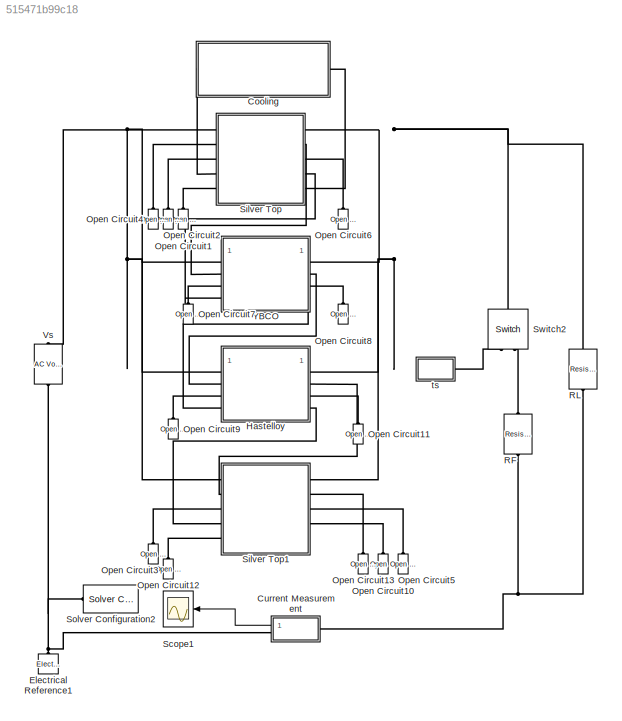
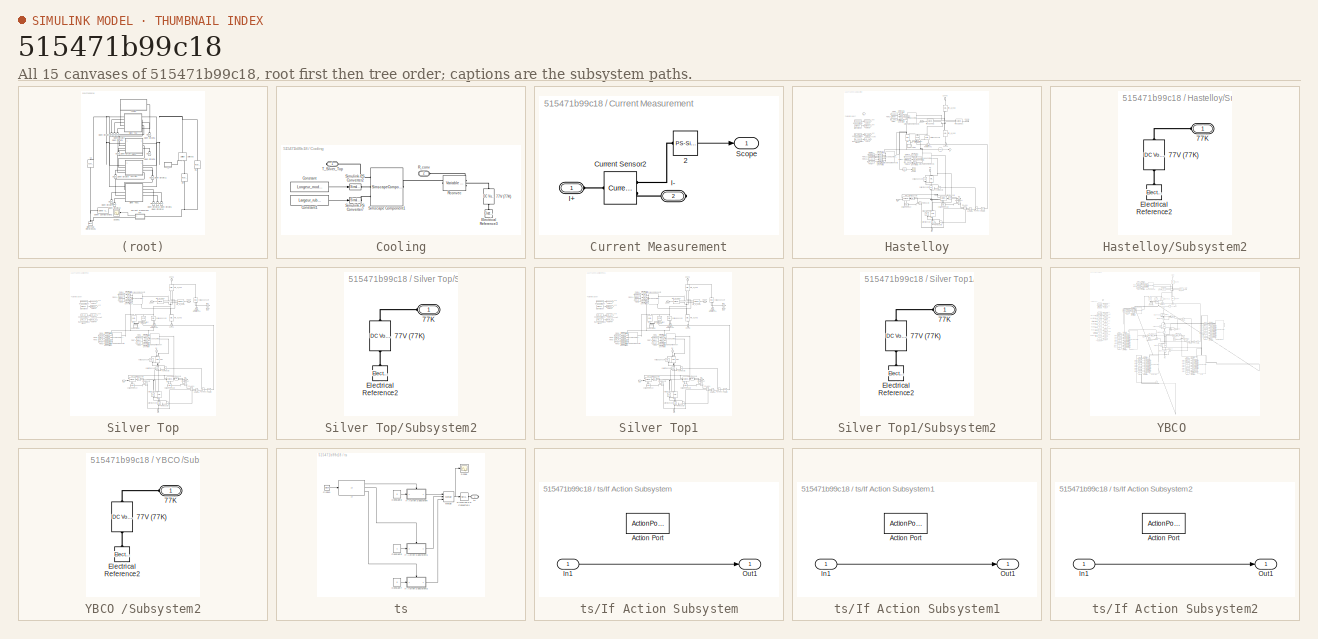
[diagram: thumbnail index - all 15 canvases of the model, root first then tree order]
MODEL slx_515471b99c18
KIND model
CONFIG AbsTol = auto
CONFIG EnableMultiTasking = off
CONFIG FixedStep = auto
CONFIG MaxStep = 1e-5
CONFIG MinStep = auto
CONFIG RelTol = 1e-6
CONFIG SampleTimeConstraint = Unconstrained
CONFIG Solver = VariableStepAuto
CONFIG SolverName = VariableStepAuto
CONFIG StartTime = 0.0
CONFIG StopTime = 0.1
BLOCK [SubSystem] Cooling
  Ports = [0, 0, 0, 0, 0, 1, 1]
  RequestExecContextInheritance = off
BLOCK [Reference] Cooling/77V (77K)  REF=fl_lib/Electrical/Electrical Sources/DC Voltage Source
  Ports = [0, 0, 0, 0, 0, 1, 1]
  SourceBlock = fl_lib/Electrical/Electrical Sources/DC Voltage Source
  SourceProductBaseCode = SS
  SourceProductName = Simscape
  SourceType = DC Voltage Source
BLOCK [Constant] Cooling/Constant
  Value = Longeur_module
BLOCK [Constant] Cooling/Constant1
  Value = Largeur_ruban
BLOCK [Reference] Cooling/Electrical Reference3  REF=fl_lib/Electrical/Electrical Elements/Electrical Reference
  Ports = [0, 0, 0, 0, 0, 1]
  SourceBlock = fl_lib/Electrical/Electrical Elements/Electrical Reference
  SourceProductBaseCode = SS
  SourceProductName = Simscape
  SourceType = Electrical Reference
BLOCK [PMIOPort] Cooling/R_conv
  Port = 2
  Side = Left
BLOCK [Reference] Cooling/Rconvec  REF=fl_lib/Electrical/Electrical Elements/Variable Resistor
  Ports = [0, 0, 0, 0, 0, 2, 1]
  SourceBlock = fl_lib/Electrical/Electrical Elements/Variable Resistor
  SourceProductBaseCode = SS
  SourceProductName = Simscape
  SourceType = Variable Resistor
BLOCK [SimscapeComponentBlock] Cooling/Simscape Component1
  ClassName = Cooling
  ComponentPath = Cooling
  ComponentVariantNames = Cooling
  ComponentVariants = Cooling
  CopyFcn = simscape.engine.sli.internal.componentblockcallback(gcbh,'COPY')
  MaskType = UseFunction1
  Ports = [0, 0, 0, 0, 0, 3, 1]
  PreCopyFcn = simscape.engine.sli.internal.componentblockcallback(gcbh,'PRECOPY')
  PreDeleteFcn = simscape.engine.sli.internal.componentblockcallback(gcbh,'PREDELETE')
  SchemaVersion = 1
  SourceFile = Cooling
BLOCK [Reference] Cooling/Simulink-PS Converter2  REF=nesl_utility/Simulink-PS
Converter
  Ports = [1, 0, 0, 0, 0, 0, 1]
  SourceBlock = nesl_utility/Simulink-PS\nConverter
  SourceProductBaseCode = SS
  SourceProductName = Simscape
  SourceType = Simulink-PS\nConverter
BLOCK [Reference] Cooling/Simulink-PS Converter7  REF=nesl_utility/Simulink-PS
Converter
  Ports = [1, 0, 0, 0, 0, 0, 1]
  SourceBlock = nesl_utility/Simulink-PS\nConverter
  SourceProductBaseCode = SS
  SourceProductName = Simscape
  SourceType = Simulink-PS\nConverter
BLOCK [PMIOPort] Cooling/T_Silver_Top
  Side = Right
BLOCK [SubSystem] Current Measurement
  Ports = [0, 1, 0, 0, 0, 1, 1]
  RequestExecContextInheritance = off
BLOCK [Reference] Current Measurement/    2  REF=nesl_utility/PS-Simulink
Converter
  Ports = [0, 1, 0, 0, 0, 1]
  SourceBlock = nesl_utility/PS-Simulink\nConverter
  SourceProductBaseCode = SS
  SourceProductName = Simscape
  SourceType = PS-Simulink\nConverter
BLOCK [Reference] Current Measurement/Current Sensor2  REF=fl_lib/Electrical/Electrical Sensors/Current Sensor
  Ports = [0, 0, 0, 0, 0, 1, 2]
  SourceBlock = fl_lib/Electrical/Electrical Sensors/Current Sensor
  SourceProductBaseCode = SS
  SourceProductName = Simscape
  SourceType = Current Sensor
BLOCK [PMIOPort] Current Measurement/I+
  Side = Left
BLOCK [PMIOPort] Current Measurement/I-
  Port = 2
  Side = Right
BLOCK [Outport] Current Measurement/Scope
  IconDisplay = Port number
BLOCK [Reference] Electrical Reference1  REF=fl_lib/Electrical/Electrical Elements/Electrical Reference
  Ports = [0, 0, 0, 0, 0, 1]
  SourceBlock = fl_lib/Electrical/Electrical Elements/Electrical Reference
  SourceProductBaseCode = SS
  SourceProductName = Simscape
  SourceType = Electrical Reference
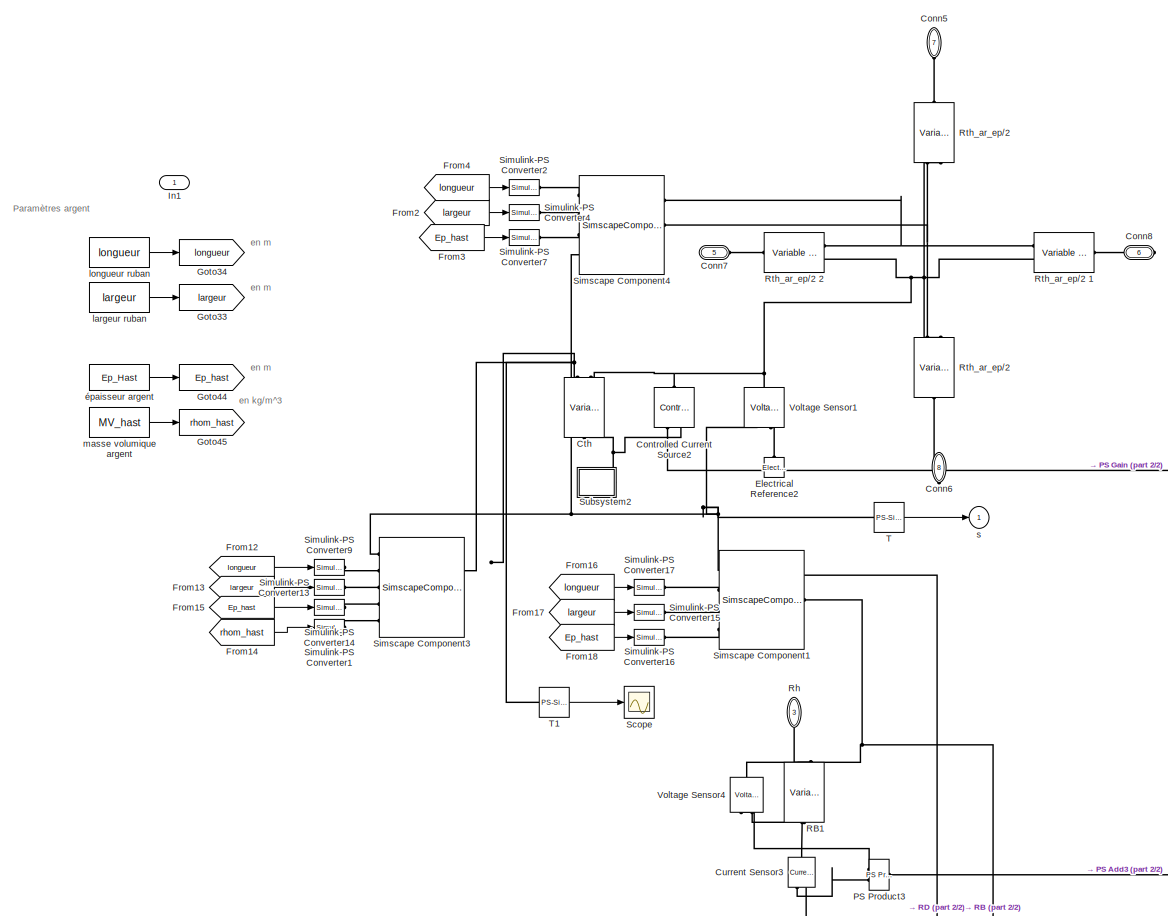
[diagram: Hastelloy - part 1/2, full width, middle band]
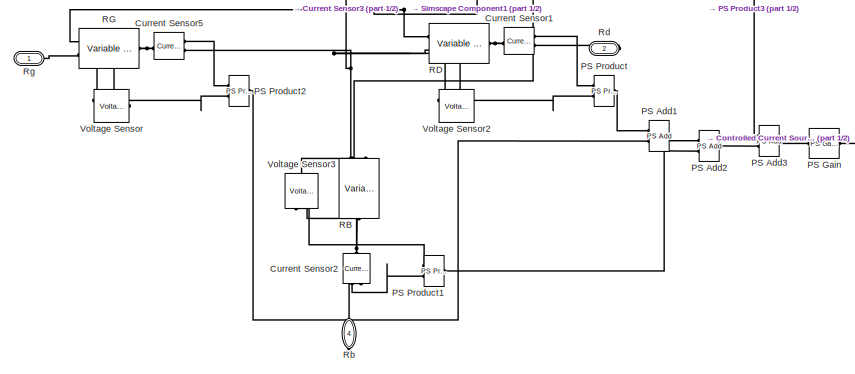
[diagram: Hastelloy - part 2/2, bottom center region]
BLOCK [SubSystem] Hastelloy
  Ports = [1, 1, 0, 0, 0, 4, 4]
  RequestExecContextInheritance = off
BLOCK [PMIOPort] Hastelloy/Conn5
  Port = 7
  Side = Left
BLOCK [PMIOPort] Hastelloy/Conn6
  Port = 8
  Side = Right
BLOCK [PMIOPort] Hastelloy/Conn7
  Port = 5
  Side = Left
BLOCK [PMIOPort] Hastelloy/Conn8
  Port = 6
  Side = Right
BLOCK [Reference] Hastelloy/Controlled Current Source2  REF=fl_lib/Electrical/Electrical Sources/Controlled Current
Source
  Ports = [0, 0, 0, 0, 0, 1, 2]
  SourceBlock = fl_lib/Electrical/Electrical Sources/Controlled Current\nSource
  SourceProductBaseCode = SS
  SourceProductName = Simscape
  SourceType = Controlled Current\nSource
BLOCK [Reference] Hastelloy/Cth  REF=ee_lib/Passive/Variable Capacitor
  Ports = [0, 0, 0, 0, 0, 2, 1]
  SourceBlock = ee_lib/Passive/Variable Capacitor
  SourceProductBaseCode = PS
  SourceProductName = Simscape Electrical
  SourceType = Variable Capacitor
BLOCK [Reference] Hastelloy/Current Sensor1  REF=fl_lib/Electrical/Electrical Sensors/Current Sensor
  Ports = [0, 0, 0, 0, 0, 1, 2]
  SourceBlock = fl_lib/Electrical/Electrical Sensors/Current Sensor
  SourceProductBaseCode = SS
  SourceProductName = Simscape
  SourceType = Current Sensor
BLOCK [Reference] Hastelloy/Current Sensor2  REF=fl_lib/Electrical/Electrical Sensors/Current Sensor
  Ports = [0, 0, 0, 0, 0, 1, 2]
  SourceBlock = fl_lib/Electrical/Electrical Sensors/Current Sensor
  SourceProductBaseCode = SS
  SourceProductName = Simscape
  SourceType = Current Sensor
BLOCK [Reference] Hastelloy/Current Sensor3  REF=fl_lib/Electrical/Electrical Sensors/Current Sensor
  Ports = [0, 0, 0, 0, 0, 1, 2]
  SourceBlock = fl_lib/Electrical/Electrical Sensors/Current Sensor
  SourceProductBaseCode = SS
  SourceProductName = Simscape
  SourceType = Current Sensor
BLOCK [Reference] Hastelloy/Current Sensor5  REF=fl_lib/Electrical/Electrical Sensors/Current Sensor
  Ports = [0, 0, 0, 0, 0, 1, 2]
  SourceBlock = fl_lib/Electrical/Electrical Sensors/Current Sensor
  SourceProductBaseCode = SS
  SourceProductName = Simscape
  SourceType = Current Sensor
BLOCK [Reference] Hastelloy/Electrical Reference2  REF=fl_lib/Electrical/Electrical Elements/Electrical Reference
  Ports = [0, 0, 0, 0, 0, 1]
  SourceBlock = fl_lib/Electrical/Electrical Elements/Electrical Reference
  SourceProductBaseCode = SS
  SourceProductName = Simscape
  SourceType = Electrical Reference
BLOCK [From] Hastelloy/From12
  GotoTag = longueur
BLOCK [From] Hastelloy/From13
  GotoTag = largeur
BLOCK [From] Hastelloy/From14
  GotoTag = rhom_hast
BLOCK [From] Hastelloy/From15
  GotoTag = Ep_hast
BLOCK [From] Hastelloy/From16
  GotoTag = longueur
BLOCK [From] Hastelloy/From17
  GotoTag = largeur
BLOCK [From] Hastelloy/From18
  GotoTag = Ep_hast
BLOCK [From] Hastelloy/From2
  GotoTag = largeur
BLOCK [From] Hastelloy/From3
  GotoTag = Ep_hast
BLOCK [From] Hastelloy/From4
  GotoTag = longueur
BLOCK [Goto] Hastelloy/Goto33
  GotoTag = largeur
BLOCK [Goto] Hastelloy/Goto34
  GotoTag = longueur
BLOCK [Goto] Hastelloy/Goto44
  GotoTag = Ep_hast
BLOCK [Goto] Hastelloy/Goto45
  GotoTag = rhom_hast
BLOCK [Inport] Hastelloy/In1
  IconDisplay = Port number
BLOCK [Reference] Hastelloy/PS Add1  REF=fl_lib/Physical Signals/Functions/PS Add
  Ports = [0, 0, 0, 0, 0, 2, 1]
  SourceBlock = fl_lib/Physical Signals/Functions/PS Add
  SourceProductBaseCode = SS
  SourceProductName = Simscape
  SourceType = PS Add
BLOCK [Reference] Hastelloy/PS Add2  REF=fl_lib/Physical Signals/Functions/PS Add
  Ports = [0, 0, 0, 0, 0, 2, 1]
  SourceBlock = fl_lib/Physical Signals/Functions/PS Add
  SourceProductBaseCode = SS
  SourceProductName = Simscape
  SourceType = PS Add
BLOCK [Reference] Hastelloy/PS Add3  REF=fl_lib/Physical Signals/Functions/PS Add
  Ports = [0, 0, 0, 0, 0, 2, 1]
  SourceBlock = fl_lib/Physical Signals/Functions/PS Add
  SourceProductBaseCode = SS
  SourceProductName = Simscape
  SourceType = PS Add
BLOCK [Reference] Hastelloy/PS Gain  REF=fl_lib/Physical Signals/Functions/PS Gain
  Ports = [0, 0, 0, 0, 0, 1, 1]
  SourceBlock = fl_lib/Physical Signals/Functions/PS Gain
  SourceProductBaseCode = SS
  SourceProductName = Simscape
  SourceType = PS Gain
BLOCK [Reference] Hastelloy/PS Product  REF=fl_lib/Physical Signals/Functions/PS Product
  Ports = [0, 0, 0, 0, 0, 2, 1]
  SourceBlock = fl_lib/Physical Signals/Functions/PS Product
  SourceProductBaseCode = SS
  SourceProductName = Simscape
  SourceType = PS Product
BLOCK [Reference] Hastelloy/PS Product1  REF=fl_lib/Physical Signals/Functions/PS Product
  Ports = [0, 0, 0, 0, 0, 2, 1]
  SourceBlock = fl_lib/Physical Signals/Functions/PS Product
  SourceProductBaseCode = SS
  SourceProductName = Simscape
  SourceType = PS Product
BLOCK [Reference] Hastelloy/PS Product2  REF=fl_lib/Physical Signals/Functions/PS Product
  Ports = [0, 0, 0, 0, 0, 2, 1]
  SourceBlock = fl_lib/Physical Signals/Functions/PS Product
  SourceProductBaseCode = SS
  SourceProductName = Simscape
  SourceType = PS Product
BLOCK [Reference] Hastelloy/PS Product3  REF=fl_lib/Physical Signals/Functions/PS Product
  Ports = [0, 0, 0, 0, 0, 2, 1]
  SourceBlock = fl_lib/Physical Signals/Functions/PS Product
  SourceProductBaseCode = SS
  SourceProductName = Simscape
  SourceType = PS Product
BLOCK [Reference] Hastelloy/RB  REF=fl_lib/Electrical/Electrical Elements/Variable Resistor
  Ports = [0, 0, 0, 0, 0, 2, 1]
  SourceBlock = fl_lib/Electrical/Electrical Elements/Variable Resistor
  SourceProductBaseCode = SS
  SourceProductName = Simscape
  SourceType = Variable Resistor
BLOCK [Reference] Hastelloy/RB1  REF=fl_lib/Electrical/Electrical Elements/Variable Resistor
  Ports = [0, 0, 0, 0, 0, 2, 1]
  SourceBlock = fl_lib/Electrical/Electrical Elements/Variable Resistor
  SourceProductBaseCode = SS
  SourceProductName = Simscape
  SourceType = Variable Resistor
BLOCK [Reference] Hastelloy/RD  REF=fl_lib/Electrical/Electrical Elements/Variable Resistor
  Ports = [0, 0, 0, 0, 0, 2, 1]
  SourceBlock = fl_lib/Electrical/Electrical Elements/Variable Resistor
  SourceProductBaseCode = SS
  SourceProductName = Simscape
  SourceType = Variable Resistor
BLOCK [Reference] Hastelloy/RG  REF=fl_lib/Electrical/Electrical Elements/Variable Resistor
  Ports = [0, 0, 0, 0, 0, 2, 1]
  SourceBlock = fl_lib/Electrical/Electrical Elements/Variable Resistor
  SourceProductBaseCode = SS
  SourceProductName = Simscape
  SourceType = Variable Resistor
BLOCK [PMIOPort] Hastelloy/Rb
  Port = 4
  Side = Right
BLOCK [PMIOPort] Hastelloy/Rd
  Port = 2
  Side = Right
BLOCK [PMIOPort] Hastelloy/Rg
  Side = Left
BLOCK [PMIOPort] Hastelloy/Rh
  Port = 3
  Side = Left
BLOCK [Reference] Hastelloy/Rth_ar_ep//2    REF=fl_lib/Electrical/Electrical Elements/Variable Resistor
  Ports = [0, 0, 0, 0, 0, 2, 1]
  SourceBlock = fl_lib/Electrical/Electrical Elements/Variable Resistor
  SourceProductBaseCode = SS
  SourceProductName = Simscape
  SourceType = Variable Resistor
BLOCK [Reference] Hastelloy/Rth_ar_ep//2      REF=fl_lib/Electrical/Electrical Elements/Variable Resistor
  Ports = [0, 0, 0, 0, 0, 2, 1]
  SourceBlock = fl_lib/Electrical/Electrical Elements/Variable Resistor
  SourceProductBaseCode = SS
  SourceProductName = Simscape
  SourceType = Variable Resistor
BLOCK [Reference] Hastelloy/Rth_ar_ep//2  1  REF=fl_lib/Electrical/Electrical Elements/Variable Resistor
  Ports = [0, 0, 0, 0, 0, 2, 1]
  SourceBlock = fl_lib/Electrical/Electrical Elements/Variable Resistor
  SourceProductBaseCode = SS
  SourceProductName = Simscape
  SourceType = Variable Resistor
BLOCK [Reference] Hastelloy/Rth_ar_ep//2  2  REF=fl_lib/Electrical/Electrical Elements/Variable Resistor
  Ports = [0, 0, 0, 0, 0, 2, 1]
  SourceBlock = fl_lib/Electrical/Electrical Elements/Variable Resistor
  SourceProductBaseCode = SS
  SourceProductName = Simscape
  SourceType = Variable Resistor
BLOCK [Scope] Hastelloy/Scope
  Floating = off
  NumInputPorts = 1
  Ports = [1]
  ScopeSpecificationString = Simulink.scopes.TimeScopeBlockCfg('CurrentConfiguration', extmgr.ConfigurationSet(extmgr.Configuration('Core','General UI',true),extmgr.Configuration('Core','Source UI',true),extmgr.Configuration('Sources','WiredSimulink',true,'DataLoggingVariableName','ScopeData1'),extmgr.Configuration('Visuals','Time Domain',true,'SerializedDisplays',{struct('MinYLimReal','5.902083','MaxYLimReal','5.902106','YLa...<+1367ch>
BLOCK [SimscapeComponentBlock] Hastelloy/Simscape Component1
  ClassName = Res_Elec_Hast
  ComponentPath = Res_Elec_Hast
  ComponentVariantNames = Res_Elec_Hast
  ComponentVariants = Res_Elec_Hast
  CopyFcn = simscape.engine.sli.internal.componentblockcallback(gcbh,'COPY')
  MaskType = UseFunction1
  Ports = [0, 0, 0, 0, 0, 4, 3]
  PreCopyFcn = simscape.engine.sli.internal.componentblockcallback(gcbh,'PRECOPY')
  PreDeleteFcn = simscape.engine.sli.internal.componentblockcallback(gcbh,'PREDELETE')
  SchemaVersion = 1
  SourceFile = Res_Elec_Hast
BLOCK [SimscapeComponentBlock] Hastelloy/Simscape Component3
  ClassName = Cth_Hast
  ComponentPath = Cth_Hast
  ComponentVariantNames = Cth_Hast
  ComponentVariants = Cth_Hast
  CopyFcn = simscape.engine.sli.internal.componentblockcallback(gcbh,'COPY')
  MaskType = UseFunction1
  Ports = [0, 0, 0, 0, 0, 5, 2]
  PreCopyFcn = simscape.engine.sli.internal.componentblockcallback(gcbh,'PRECOPY')
  PreDeleteFcn = simscape.engine.sli.internal.componentblockcallback(gcbh,'PREDELETE')
  SchemaVersion = 1
  SourceFile = Cth_Hast
BLOCK [SimscapeComponentBlock] Hastelloy/Simscape Component4
  ClassName = Rth_Hast
  ComponentPath = Rth_Hast
  ComponentVariantNames = Rth_Hast
  ComponentVariants = Rth_Hast
  CopyFcn = simscape.engine.sli.internal.componentblockcallback(gcbh,'COPY')
  MaskType = UseFunction1
  Ports = [0, 0, 0, 0, 0, 4, 3]
  PreCopyFcn = simscape.engine.sli.internal.componentblockcallback(gcbh,'PRECOPY')
  PreDeleteFcn = simscape.engine.sli.internal.componentblockcallback(gcbh,'PREDELETE')
  SchemaVersion = 1
  SourceFile = Rth_Hast
BLOCK [Reference] Hastelloy/Simulink-PS Converter1  REF=nesl_utility/Simulink-PS
Converter
  Ports = [1, 0, 0, 0, 0, 0, 1]
  SourceBlock = nesl_utility/Simulink-PS\nConverter
  SourceProductBaseCode = SS
  SourceProductName = Simscape
  SourceType = Simulink-PS\nConverter
BLOCK [Reference] Hastelloy/Simulink-PS Converter13  REF=nesl_utility/Simulink-PS
Converter
  Ports = [1, 0, 0, 0, 0, 0, 1]
  SourceBlock = nesl_utility/Simulink-PS\nConverter
  SourceProductBaseCode = SS
  SourceProductName = Simscape
  SourceType = Simulink-PS\nConverter
BLOCK [Reference] Hastelloy/Simulink-PS Converter14  REF=nesl_utility/Simulink-PS
Converter
  Ports = [1, 0, 0, 0, 0, 0, 1]
  SourceBlock = nesl_utility/Simulink-PS\nConverter
  SourceProductBaseCode = SS
  SourceProductName = Simscape
  SourceType = Simulink-PS\nConverter
BLOCK [Reference] Hastelloy/Simulink-PS Converter15  REF=nesl_utility/Simulink-PS
Converter
  Ports = [1, 0, 0, 0, 0, 0, 1]
  SourceBlock = nesl_utility/Simulink-PS\nConverter
  SourceProductBaseCode = SS
  SourceProductName = Simscape
  SourceType = Simulink-PS\nConverter
BLOCK [Reference] Hastelloy/Simulink-PS Converter16  REF=nesl_utility/Simulink-PS
Converter
  Ports = [1, 0, 0, 0, 0, 0, 1]
  SourceBlock = nesl_utility/Simulink-PS\nConverter
  SourceProductBaseCode = SS
  SourceProductName = Simscape
  SourceType = Simulink-PS\nConverter
BLOCK [Reference] Hastelloy/Simulink-PS Converter17  REF=nesl_utility/Simulink-PS
Converter
  Ports = [1, 0, 0, 0, 0, 0, 1]
  SourceBlock = nesl_utility/Simulink-PS\nConverter
  SourceProductBaseCode = SS
  SourceProductName = Simscape
  SourceType = Simulink-PS\nConverter
BLOCK [Reference] Hastelloy/Simulink-PS Converter2  REF=nesl_utility/Simulink-PS
Converter
  Ports = [1, 0, 0, 0, 0, 0, 1]
  SourceBlock = nesl_utility/Simulink-PS\nConverter
  SourceProductBaseCode = SS
  SourceProductName = Simscape
  SourceType = Simulink-PS\nConverter
BLOCK [Reference] Hastelloy/Simulink-PS Converter4  REF=nesl_utility/Simulink-PS
Converter
  Ports = [1, 0, 0, 0, 0, 0, 1]
  SourceBlock = nesl_utility/Simulink-PS\nConverter
  SourceProductBaseCode = SS
  SourceProductName = Simscape
  SourceType = Simulink-PS\nConverter
BLOCK [Reference] Hastelloy/Simulink-PS Converter7  REF=nesl_utility/Simulink-PS
Converter
  Ports = [1, 0, 0, 0, 0, 0, 1]
  SourceBlock = nesl_utility/Simulink-PS\nConverter
  SourceProductBaseCode = SS
  SourceProductName = Simscape
  SourceType = Simulink-PS\nConverter
BLOCK [Reference] Hastelloy/Simulink-PS Converter9  REF=nesl_utility/Simulink-PS
Converter
  Ports = [1, 0, 0, 0, 0, 0, 1]
  SourceBlock = nesl_utility/Simulink-PS\nConverter
  SourceProductBaseCode = SS
  SourceProductName = Simscape
  SourceType = Simulink-PS\nConverter
BLOCK [SubSystem] Hastelloy/Subsystem2
  Ports = [0, 0, 0, 0, 0, 1]
  RequestExecContextInheritance = off
BLOCK [PMIOPort] Hastelloy/Subsystem2/77K 
  Side = Left
BLOCK [Reference] Hastelloy/Subsystem2/77V (77K)  REF=fl_lib/Electrical/Electrical Sources/DC Voltage Source
  Ports = [0, 0, 0, 0, 0, 1, 1]
  SourceBlock = fl_lib/Electrical/Electrical Sources/DC Voltage Source
  SourceProductBaseCode = SS
  SourceProductName = Simscape
  SourceType = DC Voltage Source
BLOCK [Reference] Hastelloy/Subsystem2/Electrical Reference2  REF=fl_lib/Electrical/Electrical Elements/Electrical Reference
  Ports = [0, 0, 0, 0, 0, 1]
  SourceBlock = fl_lib/Electrical/Electrical Elements/Electrical Reference
  SourceProductBaseCode = SS
  SourceProductName = Simscape
  SourceType = Electrical Reference
BLOCK [Reference] Hastelloy/T  REF=nesl_utility/PS-Simulink
Converter
  Ports = [0, 1, 0, 0, 0, 1]
  SourceBlock = nesl_utility/PS-Simulink\nConverter
  SourceProductBaseCode = SS
  SourceProductName = Simscape
  SourceType = PS-Simulink\nConverter
BLOCK [Reference] Hastelloy/T1  REF=nesl_utility/PS-Simulink
Converter
  Ports = [0, 1, 0, 0, 0, 1]
  SourceBlock = nesl_utility/PS-Simulink\nConverter
  SourceProductBaseCode = SS
  SourceProductName = Simscape
  SourceType = PS-Simulink\nConverter
BLOCK [Reference] Hastelloy/Voltage Sensor  REF=fl_lib/Electrical/Electrical Sensors/Voltage Sensor
  Ports = [0, 0, 0, 0, 0, 1, 2]
  SourceBlock = fl_lib/Electrical/Electrical Sensors/Voltage Sensor
  SourceProductBaseCode = SS
  SourceProductName = Simscape
  SourceType = Voltage Sensor
BLOCK [Reference] Hastelloy/Voltage Sensor1  REF=fl_lib/Electrical/Electrical Sensors/Voltage Sensor
  Ports = [0, 0, 0, 0, 0, 1, 2]
  SourceBlock = fl_lib/Electrical/Electrical Sensors/Voltage Sensor
  SourceProductBaseCode = SS
  SourceProductName = Simscape
  SourceType = Voltage Sensor
BLOCK [Reference] Hastelloy/Voltage Sensor2  REF=fl_lib/Electrical/Electrical Sensors/Voltage Sensor
  Ports = [0, 0, 0, 0, 0, 1, 2]
  SourceBlock = fl_lib/Electrical/Electrical Sensors/Voltage Sensor
  SourceProductBaseCode = SS
  SourceProductName = Simscape
  SourceType = Voltage Sensor
BLOCK [Reference] Hastelloy/Voltage Sensor3  REF=fl_lib/Electrical/Electrical Sensors/Voltage Sensor
  Ports = [0, 0, 0, 0, 0, 1, 2]
  SourceBlock = fl_lib/Electrical/Electrical Sensors/Voltage Sensor
  SourceProductBaseCode = SS
  SourceProductName = Simscape
  SourceType = Voltage Sensor
BLOCK [Reference] Hastelloy/Voltage Sensor4  REF=fl_lib/Electrical/Electrical Sensors/Voltage Sensor
  Ports = [0, 0, 0, 0, 0, 1, 2]
  SourceBlock = fl_lib/Electrical/Electrical Sensors/Voltage Sensor
  SourceProductBaseCode = SS
  SourceProductName = Simscape
  SourceType = Voltage Sensor
BLOCK [Constant] Hastelloy/largeur ruban
  Value = largeur
BLOCK [Constant] Hastelloy/longueur ruban
  Value = longueur
BLOCK [Constant] Hastelloy/masse volumique argent
  Value = MV_hast
BLOCK [Outport] Hastelloy/s
  IconDisplay = Port number
BLOCK [Constant] Hastelloy/épaisseur argent
  Value = Ep_Hast
BLOCK [Reference] Open Circuit1  REF=fl_lib/Electrical/Electrical Elements/Open Circuit
  Ports = [0, 0, 0, 0, 0, 1]
  SourceBlock = fl_lib/Electrical/Electrical Elements/Open Circuit
  SourceProductBaseCode = SS
  SourceProductName = Simscape
  SourceType = Open Circuit
BLOCK [Reference] Open Circuit10  REF=fl_lib/Electrical/Electrical Elements/Open Circuit
  Ports = [0, 0, 0, 0, 0, 1]
  SourceBlock = fl_lib/Electrical/Electrical Elements/Open Circuit
  SourceProductBaseCode = SS
  SourceProductName = Simscape
  SourceType = Open Circuit
BLOCK [Reference] Open Circuit11  REF=fl_lib/Electrical/Electrical Elements/Open Circuit
  Ports = [0, 0, 0, 0, 0, 1]
  SourceBlock = fl_lib/Electrical/Electrical Elements/Open Circuit
  SourceProductBaseCode = SS
  SourceProductName = Simscape
  SourceType = Open Circuit
BLOCK [Reference] Open Circuit12  REF=fl_lib/Electrical/Electrical Elements/Open Circuit
  Ports = [0, 0, 0, 0, 0, 1]
  SourceBlock = fl_lib/Electrical/Electrical Elements/Open Circuit
  SourceProductBaseCode = SS
  SourceProductName = Simscape
  SourceType = Open Circuit
BLOCK [Reference] Open Circuit13  REF=fl_lib/Electrical/Electrical Elements/Open Circuit
  Ports = [0, 0, 0, 0, 0, 1]
  SourceBlock = fl_lib/Electrical/Electrical Elements/Open Circuit
  SourceProductBaseCode = SS
  SourceProductName = Simscape
  SourceType = Open Circuit
BLOCK [Reference] Open Circuit2  REF=fl_lib/Electrical/Electrical Elements/Open Circuit
  Ports = [0, 0, 0, 0, 0, 1]
  SourceBlock = fl_lib/Electrical/Electrical Elements/Open Circuit
  SourceProductBaseCode = SS
  SourceProductName = Simscape
  SourceType = Open Circuit
BLOCK [Reference] Open Circuit3  REF=fl_lib/Electrical/Electrical Elements/Open Circuit
  Ports = [0, 0, 0, 0, 0, 1]
  SourceBlock = fl_lib/Electrical/Electrical Elements/Open Circuit
  SourceProductBaseCode = SS
  SourceProductName = Simscape
  SourceType = Open Circuit
BLOCK [Reference] Open Circuit4  REF=fl_lib/Electrical/Electrical Elements/Open Circuit
  Ports = [0, 0, 0, 0, 0, 1]
  SourceBlock = fl_lib/Electrical/Electrical Elements/Open Circuit
  SourceProductBaseCode = SS
  SourceProductName = Simscape
  SourceType = Open Circuit
BLOCK [Reference] Open Circuit5  REF=fl_lib/Electrical/Electrical Elements/Open Circuit
  Ports = [0, 0, 0, 0, 0, 1]
  SourceBlock = fl_lib/Electrical/Electrical Elements/Open Circuit
  SourceProductBaseCode = SS
  SourceProductName = Simscape
  SourceType = Open Circuit
BLOCK [Reference] Open Circuit6  REF=fl_lib/Electrical/Electrical Elements/Open Circuit
  Ports = [0, 0, 0, 0, 0, 1]
  SourceBlock = fl_lib/Electrical/Electrical Elements/Open Circuit
  SourceProductBaseCode = SS
  SourceProductName = Simscape
  SourceType = Open Circuit
BLOCK [Reference] Open Circuit7  REF=fl_lib/Electrical/Electrical Elements/Open Circuit
  Ports = [0, 0, 0, 0, 0, 1]
  SourceBlock = fl_lib/Electrical/Electrical Elements/Open Circuit
  SourceProductBaseCode = SS
  SourceProductName = Simscape
  SourceType = Open Circuit
BLOCK [Reference] Open Circuit8  REF=fl_lib/Electrical/Electrical Elements/Open Circuit
  Ports = [0, 0, 0, 0, 0, 1]
  SourceBlock = fl_lib/Electrical/Electrical Elements/Open Circuit
  SourceProductBaseCode = SS
  SourceProductName = Simscape
  SourceType = Open Circuit
BLOCK [Reference] Open Circuit9  REF=fl_lib/Electrical/Electrical Elements/Open Circuit
  Ports = [0, 0, 0, 0, 0, 1]
  SourceBlock = fl_lib/Electrical/Electrical Elements/Open Circuit
  SourceProductBaseCode = SS
  SourceProductName = Simscape
  SourceType = Open Circuit
BLOCK [Reference] RF  REF=fl_lib/Electrical/Electrical Elements/Resistor
  Ports = [0, 0, 0, 0, 0, 1, 1]
  SourceBlock = fl_lib/Electrical/Electrical Elements/Resistor
  SourceProductBaseCode = SS
  SourceProductName = Simscape
  SourceType = Resistor
BLOCK [Reference] RL  REF=fl_lib/Electrical/Electrical Elements/Resistor
  Ports = [0, 0, 0, 0, 0, 1, 1]
  SourceBlock = fl_lib/Electrical/Electrical Elements/Resistor
  SourceProductBaseCode = SS
  SourceProductName = Simscape
  SourceType = Resistor
BLOCK [Scope] Scope1
  Floating = off
  NumInputPorts = 1
  Ports = [1]
  ScopeSpecificationString = Simulink.scopes.TimeScopeBlockCfg('CurrentConfiguration', extmgr.ConfigurationSet(extmgr.Configuration('Core','General UI',true),extmgr.Configuration('Core','Source UI',true),extmgr.Configuration('Sources','WiredSimulink',true,'DataLoggingVariableName','ScopeData1'),extmgr.Configuration('Visuals','Time Domain',true,'SerializedDisplays',{struct('MinYLimReal','-110.31379','MaxYLimReal','239.9598','Y...<+1608ch>
BLOCK [SubSystem] Silver Top
  Ports = [0, 0, 0, 0, 0, 5, 5]
  RequestExecContextInheritance = off
BLOCK [PMIOPort] Silver Top/Conn5
  Port = 7
  Side = Left
BLOCK [PMIOPort] Silver Top/Conn6
  Port = 8
  Side = Right
BLOCK [PMIOPort] Silver Top/Conn7
  Port = 5
  Side = Left
BLOCK [PMIOPort] Silver Top/Conn8
  Port = 6
  Side = Right
BLOCK [Reference] Silver Top/Controlled Current Source2  REF=fl_lib/Electrical/Electrical Sources/Controlled Current
Source
  Ports = [0, 0, 0, 0, 0, 1, 2]
  SourceBlock = fl_lib/Electrical/Electrical Sources/Controlled Current\nSource
  SourceProductBaseCode = SS
  SourceProductName = Simscape
  SourceType = Controlled Current\nSource
BLOCK [Reference] Silver Top/Cth  REF=ee_lib/Passive/Variable Capacitor
  Ports = [0, 0, 0, 0, 0, 2, 1]
  SourceBlock = ee_lib/Passive/Variable Capacitor
  SourceProductBaseCode = PS
  SourceProductName = Simscape Electrical
  SourceType = Variable Capacitor
BLOCK [Reference] Silver Top/Current Sensor1  REF=fl_lib/Electrical/Electrical Sensors/Current Sensor
  Ports = [0, 0, 0, 0, 0, 1, 2]
  SourceBlock = fl_lib/Electrical/Electrical Sensors/Current Sensor
  SourceProductBaseCode = SS
  SourceProductName = Simscape
  SourceType = Current Sensor
BLOCK [Reference] Silver Top/Current Sensor2  REF=fl_lib/Electrical/Electrical Sensors/Current Sensor
  Ports = [0, 0, 0, 0, 0, 1, 2]
  SourceBlock = fl_lib/Electrical/Electrical Sensors/Current Sensor
  SourceProductBaseCode = SS
  SourceProductName = Simscape
  SourceType = Current Sensor
BLOCK [Reference] Silver Top/Current Sensor3  REF=fl_lib/Electrical/Electrical Sensors/Current Sensor
  Ports = [0, 0, 0, 0, 0, 1, 2]
  SourceBlock = fl_lib/Electrical/Electrical Sensors/Current Sensor
  SourceProductBaseCode = SS
  SourceProductName = Simscape
  SourceType = Current Sensor
BLOCK [Reference] Silver Top/Current Sensor5  REF=fl_lib/Electrical/Electrical Sensors/Current Sensor
  Ports = [0, 0, 0, 0, 0, 1, 2]
  SourceBlock = fl_lib/Electrical/Electrical Sensors/Current Sensor
  SourceProductBaseCode = SS
  SourceProductName = Simscape
  SourceType = Current Sensor
BLOCK [Reference] Silver Top/Electrical Reference1  REF=fl_lib/Electrical/Electrical Elements/Electrical Reference
  Ports = [0, 0, 0, 0, 0, 1]
  SourceBlock = fl_lib/Electrical/Electrical Elements/Electrical Reference
  SourceProductBaseCode = SS
  SourceProductName = Simscape
  SourceType = Electrical Reference
BLOCK [Reference] Silver Top/Electrical Reference2  REF=fl_lib/Electrical/Electrical Elements/Electrical Reference
  Ports = [0, 0, 0, 0, 0, 1]
  SourceBlock = fl_lib/Electrical/Electrical Elements/Electrical Reference
  SourceProductBaseCode = SS
  SourceProductName = Simscape
  SourceType = Electrical Reference
BLOCK [From] Silver Top/From10
  GotoTag = longueur
BLOCK [From] Silver Top/From11
  GotoTag = largeur
BLOCK [From] Silver Top/From2
  GotoTag = rhom_ar
BLOCK [From] Silver Top/From3
  GotoTag = Ep_ar
BLOCK [From] Silver Top/From4
  GotoTag = longueur
BLOCK [From] Silver Top/From5
  GotoTag = Ep_ar
BLOCK [From] Silver Top/From6
  GotoTag = longueur
BLOCK [From] Silver Top/From7
  GotoTag = largeur
BLOCK [From] Silver Top/From8
  GotoTag = largeur
BLOCK [From] Silver Top/From9
  GotoTag = Ep_ar
BLOCK [Goto] Silver Top/Goto33
  GotoTag = largeur
BLOCK [Goto] Silver Top/Goto34
  GotoTag = longueur
BLOCK [Goto] Silver Top/Goto44
  GotoTag = Ep_ar
BLOCK [Goto] Silver Top/Goto45
  GotoTag = rhom_ar
BLOCK [Reference] Silver Top/PS Add1  REF=fl_lib/Physical Signals/Functions/PS Add
  Ports = [0, 0, 0, 0, 0, 2, 1]
  SourceBlock = fl_lib/Physical Signals/Functions/PS Add
  SourceProductBaseCode = SS
  SourceProductName = Simscape
  SourceType = PS Add
BLOCK [Reference] Silver Top/PS Add2  REF=fl_lib/Physical Signals/Functions/PS Add
  Ports = [0, 0, 0, 0, 0, 2, 1]
  SourceBlock = fl_lib/Physical Signals/Functions/PS Add
  SourceProductBaseCode = SS
  SourceProductName = Simscape
  SourceType = PS Add
BLOCK [Reference] Silver Top/PS Add3  REF=fl_lib/Physical Signals/Functions/PS Add
  Ports = [0, 0, 0, 0, 0, 2, 1]
  SourceBlock = fl_lib/Physical Signals/Functions/PS Add
  SourceProductBaseCode = SS
  SourceProductName = Simscape
  SourceType = PS Add
BLOCK [Reference] Silver Top/PS Gain  REF=fl_lib/Physical Signals/Functions/PS Gain
  Ports = [0, 0, 0, 0, 0, 1, 1]
  SourceBlock = fl_lib/Physical Signals/Functions/PS Gain
  SourceProductBaseCode = SS
  SourceProductName = Simscape
  SourceType = PS Gain
BLOCK [Reference] Silver Top/PS Product  REF=fl_lib/Physical Signals/Functions/PS Product
  Ports = [0, 0, 0, 0, 0, 2, 1]
  SourceBlock = fl_lib/Physical Signals/Functions/PS Product
  SourceProductBaseCode = SS
  SourceProductName = Simscape
  SourceType = PS Product
BLOCK [Reference] Silver Top/PS Product1  REF=fl_lib/Physical Signals/Functions/PS Product
  Ports = [0, 0, 0, 0, 0, 2, 1]
  SourceBlock = fl_lib/Physical Signals/Functions/PS Product
  SourceProductBaseCode = SS
  SourceProductName = Simscape
  SourceType = PS Product
BLOCK [Reference] Silver Top/PS Product2  REF=fl_lib/Physical Signals/Functions/PS Product
  Ports = [0, 0, 0, 0, 0, 2, 1]
  SourceBlock = fl_lib/Physical Signals/Functions/PS Product
  SourceProductBaseCode = SS
  SourceProductName = Simscape
  SourceType = PS Product
BLOCK [Reference] Silver Top/PS Product3  REF=fl_lib/Physical Signals/Functions/PS Product
  Ports = [0, 0, 0, 0, 0, 2, 1]
  SourceBlock = fl_lib/Physical Signals/Functions/PS Product
  SourceProductBaseCode = SS
  SourceProductName = Simscape
  SourceType = PS Product
BLOCK [Reference] Silver Top/RB  REF=fl_lib/Electrical/Electrical Elements/Variable Resistor
  Ports = [0, 0, 0, 0, 0, 2, 1]
  SourceBlock = fl_lib/Electrical/Electrical Elements/Variable Resistor
  SourceProductBaseCode = SS
  SourceProductName = Simscape
  SourceType = Variable Resistor
BLOCK [Reference] Silver Top/RB1  REF=fl_lib/Electrical/Electrical Elements/Variable Resistor
  Ports = [0, 0, 0, 0, 0, 2, 1]
  SourceBlock = fl_lib/Electrical/Electrical Elements/Variable Resistor
  SourceProductBaseCode = SS
  SourceProductName = Simscape
  SourceType = Variable Resistor
BLOCK [Reference] Silver Top/RD  REF=fl_lib/Electrical/Electrical Elements/Variable Resistor
  Ports = [0, 0, 0, 0, 0, 2, 1]
  SourceBlock = fl_lib/Electrical/Electrical Elements/Variable Resistor
  SourceProductBaseCode = SS
  SourceProductName = Simscape
  SourceType = Variable Resistor
BLOCK [Reference] Silver Top/RG  REF=fl_lib/Electrical/Electrical Elements/Variable Resistor
  Ports = [0, 0, 0, 0, 0, 2, 1]
  SourceBlock = fl_lib/Electrical/Electrical Elements/Variable Resistor
  SourceProductBaseCode = SS
  SourceProductName = Simscape
  SourceType = Variable Resistor
BLOCK [PMIOPort] Silver Top/Rb
  Port = 4
  Side = Right
BLOCK [PMIOPort] Silver Top/Rd
  Port = 2
  Side = Right
BLOCK [PMIOPort] Silver Top/Rg
  Side = Left
BLOCK [PMIOPort] Silver Top/Rh
  Port = 3
  Side = Left
BLOCK [PMIOPort] Silver Top/Rh1
  Port = 9
  Side = Right
BLOCK [PMIOPort] Silver Top/Rh2
  Port = 10
  Side = Left
BLOCK [Reference] Silver Top/Rth_ar_ep//2    REF=fl_lib/Electrical/Electrical Elements/Variable Resistor
  Ports = [0, 0, 0, 0, 0, 2, 1]
  SourceBlock = fl_lib/Electrical/Electrical Elements/Variable Resistor
  SourceProductBaseCode = SS
  SourceProductName = Simscape
  SourceType = Variable Resistor
BLOCK [Reference] Silver Top/Rth_ar_ep//2      REF=fl_lib/Electrical/Electrical Elements/Variable Resistor
  Ports = [0, 0, 0, 0, 0, 2, 1]
  SourceBlock = fl_lib/Electrical/Electrical Elements/Variable Resistor
  SourceProductBaseCode = SS
  SourceProductName = Simscape
  SourceType = Variable Resistor
BLOCK [Reference] Silver Top/Rth_ar_ep//2  1  REF=fl_lib/Electrical/Electrical Elements/Variable Resistor
  Ports = [0, 0, 0, 0, 0, 2, 1]
  SourceBlock = fl_lib/Electrical/Electrical Elements/Variable Resistor
  SourceProductBaseCode = SS
  SourceProductName = Simscape
  SourceType = Variable Resistor
BLOCK [Reference] Silver Top/Rth_ar_ep//2  2  REF=fl_lib/Electrical/Electrical Elements/Variable Resistor
  Ports = [0, 0, 0, 0, 0, 2, 1]
  SourceBlock = fl_lib/Electrical/Electrical Elements/Variable Resistor
  SourceProductBaseCode = SS
  SourceProductName = Simscape
  SourceType = Variable Resistor
BLOCK [SimscapeComponentBlock] Silver Top/Simscape Component
  ClassName = Res_Elec_Ag
  ComponentPath = Res_Elec_Ag
  ComponentVariantNames = Res_Elec_Ag
  ComponentVariants = Res_Elec_Ag
  CopyFcn = simscape.engine.sli.internal.componentblockcallback(gcbh,'COPY')
  MaskType = UseFunction1
  Ports = [0, 0, 0, 0, 0, 4, 3]
  PreCopyFcn = simscape.engine.sli.internal.componentblockcallback(gcbh,'PRECOPY')
  PreDeleteFcn = simscape.engine.sli.internal.componentblockcallback(gcbh,'PREDELETE')
  SchemaVersion = 1
  SourceFile = Res_Elec_Ag
BLOCK [SimscapeComponentBlock] Silver Top/Simscape Component1
  ClassName = Cth_Ag
  ComponentPath = Cth_Ag
  ComponentVariantNames = Cth_Ag
  ComponentVariants = Cth_Ag
  CopyFcn = simscape.engine.sli.internal.componentblockcallback(gcbh,'COPY')
  MaskType = UseFunction1
  Ports = [0, 0, 0, 0, 0, 5, 2]
  PreCopyFcn = simscape.engine.sli.internal.componentblockcallback(gcbh,'PRECOPY')
  PreDeleteFcn = simscape.engine.sli.internal.componentblockcallback(gcbh,'PREDELETE')
  SchemaVersion = 1
  SourceFile = Cth_Ag
BLOCK [SimscapeComponentBlock] Silver Top/Simscape Component2
  ClassName = Rth_Ag
  ComponentPath = Rth_Ag
  ComponentVariantNames = Rth_Ag
  ComponentVariants = Rth_Ag
  CopyFcn = simscape.engine.sli.internal.componentblockcallback(gcbh,'COPY')
  MaskType = UseFunction1
  Ports = [0, 0, 0, 0, 0, 4, 3]
  PreCopyFcn = simscape.engine.sli.internal.componentblockcallback(gcbh,'PRECOPY')
  PreDeleteFcn = simscape.engine.sli.internal.componentblockcallback(gcbh,'PREDELETE')
  SchemaVersion = 1
  SourceFile = Rth_Ag
BLOCK [Reference] Silver Top/Simulink-PS Converter10  REF=nesl_utility/Simulink-PS
Converter
  Ports = [1, 0, 0, 0, 0, 0, 1]
  SourceBlock = nesl_utility/Simulink-PS\nConverter
  SourceProductBaseCode = SS
  SourceProductName = Simscape
  SourceType = Simulink-PS\nConverter
BLOCK [Reference] Silver Top/Simulink-PS Converter11  REF=nesl_utility/Simulink-PS
Converter
  Ports = [1, 0, 0, 0, 0, 0, 1]
  SourceBlock = nesl_utility/Simulink-PS\nConverter
  SourceProductBaseCode = SS
  SourceProductName = Simscape
  SourceType = Simulink-PS\nConverter
BLOCK [Reference] Silver Top/Simulink-PS Converter12  REF=nesl_utility/Simulink-PS
Converter
  Ports = [1, 0, 0, 0, 0, 0, 1]
  SourceBlock = nesl_utility/Simulink-PS\nConverter
  SourceProductBaseCode = SS
  SourceProductName = Simscape
  SourceType = Simulink-PS\nConverter
BLOCK [Reference] Silver Top/Simulink-PS Converter2  REF=nesl_utility/Simulink-PS
Converter
  Ports = [1, 0, 0, 0, 0, 0, 1]
  SourceBlock = nesl_utility/Simulink-PS\nConverter
  SourceProductBaseCode = SS
  SourceProductName = Simscape
  SourceType = Simulink-PS\nConverter
BLOCK [Reference] Silver Top/Simulink-PS Converter3  REF=nesl_utility/Simulink-PS
Converter
  Ports = [1, 0, 0, 0, 0, 0, 1]
  SourceBlock = nesl_utility/Simulink-PS\nConverter
  SourceProductBaseCode = SS
  SourceProductName = Simscape
  SourceType = Simulink-PS\nConverter
BLOCK [Reference] Silver Top/Simulink-PS Converter4  REF=nesl_utility/Simulink-PS
Converter
  Ports = [1, 0, 0, 0, 0, 0, 1]
  SourceBlock = nesl_utility/Simulink-PS\nConverter
  SourceProductBaseCode = SS
  SourceProductName = Simscape
  SourceType = Simulink-PS\nConverter
BLOCK [Reference] Silver Top/Simulink-PS Converter5  REF=nesl_utility/Simulink-PS
Converter
  Ports = [1, 0, 0, 0, 0, 0, 1]
  SourceBlock = nesl_utility/Simulink-PS\nConverter
  SourceProductBaseCode = SS
  SourceProductName = Simscape
  SourceType = Simulink-PS\nConverter
BLOCK [Reference] Silver Top/Simulink-PS Converter6  REF=nesl_utility/Simulink-PS
Converter
  Ports = [1, 0, 0, 0, 0, 0, 1]
  SourceBlock = nesl_utility/Simulink-PS\nConverter
  SourceProductBaseCode = SS
  SourceProductName = Simscape
  SourceType = Simulink-PS\nConverter
BLOCK [Reference] Silver Top/Simulink-PS Converter7  REF=nesl_utility/Simulink-PS
Converter
  Ports = [1, 0, 0, 0, 0, 0, 1]
  SourceBlock = nesl_utility/Simulink-PS\nConverter
  SourceProductBaseCode = SS
  SourceProductName = Simscape
  SourceType = Simulink-PS\nConverter
BLOCK [Reference] Silver Top/Simulink-PS Converter8  REF=nesl_utility/Simulink-PS
Converter
  Ports = [1, 0, 0, 0, 0, 0, 1]
  SourceBlock = nesl_utility/Simulink-PS\nConverter
  SourceProductBaseCode = SS
  SourceProductName = Simscape
  SourceType = Simulink-PS\nConverter
BLOCK [SubSystem] Silver Top/Subsystem2
  Ports = [0, 0, 0, 0, 0, 1]
  RequestExecContextInheritance = off
BLOCK [PMIOPort] Silver Top/Subsystem2/77K 
  Side = Left
BLOCK [Reference] Silver Top/Subsystem2/77V (77K)  REF=fl_lib/Electrical/Electrical Sources/DC Voltage Source
  Ports = [0, 0, 0, 0, 0, 1, 1]
  SourceBlock = fl_lib/Electrical/Electrical Sources/DC Voltage Source
  SourceProductBaseCode = SS
  SourceProductName = Simscape
  SourceType = DC Voltage Source
BLOCK [Reference] Silver Top/Subsystem2/Electrical Reference2  REF=fl_lib/Electrical/Electrical Elements/Electrical Reference
  Ports = [0, 0, 0, 0, 0, 1]
  SourceBlock = fl_lib/Electrical/Electrical Elements/Electrical Reference
  SourceProductBaseCode = SS
  SourceProductName = Simscape
  SourceType = Electrical Reference
BLOCK [Reference] Silver Top/Voltage Sensor  REF=fl_lib/Electrical/Electrical Sensors/Voltage Sensor
  Ports = [0, 0, 0, 0, 0, 1, 2]
  SourceBlock = fl_lib/Electrical/Electrical Sensors/Voltage Sensor
  SourceProductBaseCode = SS
  SourceProductName = Simscape
  SourceType = Voltage Sensor
BLOCK [Reference] Silver Top/Voltage Sensor1  REF=fl_lib/Electrical/Electrical Sensors/Voltage Sensor
  Ports = [0, 0, 0, 0, 0, 1, 2]
  SourceBlock = fl_lib/Electrical/Electrical Sensors/Voltage Sensor
  SourceProductBaseCode = SS
  SourceProductName = Simscape
  SourceType = Voltage Sensor
BLOCK [Reference] Silver Top/Voltage Sensor2  REF=fl_lib/Electrical/Electrical Sensors/Voltage Sensor
  Ports = [0, 0, 0, 0, 0, 1, 2]
  SourceBlock = fl_lib/Electrical/Electrical Sensors/Voltage Sensor
  SourceProductBaseCode = SS
  SourceProductName = Simscape
  SourceType = Voltage Sensor
BLOCK [Reference] Silver Top/Voltage Sensor3  REF=fl_lib/Electrical/Electrical Sensors/Voltage Sensor
  Ports = [0, 0, 0, 0, 0, 1, 2]
  SourceBlock = fl_lib/Electrical/Electrical Sensors/Voltage Sensor
  SourceProductBaseCode = SS
  SourceProductName = Simscape
  SourceType = Voltage Sensor
BLOCK [Reference] Silver Top/Voltage Sensor4  REF=fl_lib/Electrical/Electrical Sensors/Voltage Sensor
  Ports = [0, 0, 0, 0, 0, 1, 2]
  SourceBlock = fl_lib/Electrical/Electrical Sensors/Voltage Sensor
  SourceProductBaseCode = SS
  SourceProductName = Simscape
  SourceType = Voltage Sensor
BLOCK [Reference] Silver Top/Voltage Sensor7  REF=fl_lib/Electrical/Electrical Sensors/Voltage Sensor
  Ports = [0, 0, 0, 0, 0, 1, 2]
  SourceBlock = fl_lib/Electrical/Electrical Sensors/Voltage Sensor
  SourceProductBaseCode = SS
  SourceProductName = Simscape
  SourceType = Voltage Sensor
BLOCK [Constant] Silver Top/largeur ruban
  Value = largeur
BLOCK [Constant] Silver Top/longueur ruban
  Value = longueur
BLOCK [Constant] Silver Top/masse volumique argent
  Value = MV_Ar
BLOCK [Constant] Silver Top/épaisseur argent
  Value = Ep_ar
BLOCK [SubSystem] Silver Top1
  Ports = [0, 0, 0, 0, 0, 5, 5]
  RequestExecContextInheritance = off
BLOCK [PMIOPort] Silver Top1/Conn5
  Port = 7
  Side = Left
BLOCK [PMIOPort] Silver Top1/Conn6
  Port = 8
  Side = Right
BLOCK [PMIOPort] Silver Top1/Conn7
  Port = 5
  Side = Left
BLOCK [PMIOPort] Silver Top1/Conn8
  Port = 6
  Side = Right
BLOCK [Reference] Silver Top1/Controlled Current Source2  REF=fl_lib/Electrical/Electrical Sources/Controlled Current
Source
  Ports = [0, 0, 0, 0, 0, 1, 2]
  SourceBlock = fl_lib/Electrical/Electrical Sources/Controlled Current\nSource
  SourceProductBaseCode = SS
  SourceProductName = Simscape
  SourceType = Controlled Current\nSource
BLOCK [Reference] Silver Top1/Cth  REF=ee_lib/Passive/Variable Capacitor
  Ports = [0, 0, 0, 0, 0, 2, 1]
  SourceBlock = ee_lib/Passive/Variable Capacitor
  SourceProductBaseCode = PS
  SourceProductName = Simscape Electrical
  SourceType = Variable Capacitor
BLOCK [Reference] Silver Top1/Current Sensor1  REF=fl_lib/Electrical/Electrical Sensors/Current Sensor
  Ports = [0, 0, 0, 0, 0, 1, 2]
  SourceBlock = fl_lib/Electrical/Electrical Sensors/Current Sensor
  SourceProductBaseCode = SS
  SourceProductName = Simscape
  SourceType = Current Sensor
BLOCK [Reference] Silver Top1/Current Sensor2  REF=fl_lib/Electrical/Electrical Sensors/Current Sensor
  Ports = [0, 0, 0, 0, 0, 1, 2]
  SourceBlock = fl_lib/Electrical/Electrical Sensors/Current Sensor
  SourceProductBaseCode = SS
  SourceProductName = Simscape
  SourceType = Current Sensor
BLOCK [Reference] Silver Top1/Current Sensor3  REF=fl_lib/Electrical/Electrical Sensors/Current Sensor
  Ports = [0, 0, 0, 0, 0, 1, 2]
  SourceBlock = fl_lib/Electrical/Electrical Sensors/Current Sensor
  SourceProductBaseCode = SS
  SourceProductName = Simscape
  SourceType = Current Sensor
BLOCK [Reference] Silver Top1/Current Sensor5  REF=fl_lib/Electrical/Electrical Sensors/Current Sensor
  Ports = [0, 0, 0, 0, 0, 1, 2]
  SourceBlock = fl_lib/Electrical/Electrical Sensors/Current Sensor
  SourceProductBaseCode = SS
  SourceProductName = Simscape
  SourceType = Current Sensor
BLOCK [Reference] Silver Top1/Electrical Reference1  REF=fl_lib/Electrical/Electrical Elements/Electrical Reference
  Ports = [0, 0, 0, 0, 0, 1]
  SourceBlock = fl_lib/Electrical/Electrical Elements/Electrical Reference
  SourceProductBaseCode = SS
  SourceProductName = Simscape
  SourceType = Electrical Reference
BLOCK [Reference] Silver Top1/Electrical Reference2  REF=fl_lib/Electrical/Electrical Elements/Electrical Reference
  Ports = [0, 0, 0, 0, 0, 1]
  SourceBlock = fl_lib/Electrical/Electrical Elements/Electrical Reference
  SourceProductBaseCode = SS
  SourceProductName = Simscape
  SourceType = Electrical Reference
BLOCK [From] Silver Top1/From10
  GotoTag = longueur
BLOCK [From] Silver Top1/From11
  GotoTag = largeur
BLOCK [From] Silver Top1/From2
  GotoTag = rhom_ar
BLOCK [From] Silver Top1/From3
  GotoTag = Ep_ar
BLOCK [From] Silver Top1/From4
  GotoTag = longueur
BLOCK [From] Silver Top1/From5
  GotoTag = Ep_ar
BLOCK [From] Silver Top1/From6
  GotoTag = longueur
BLOCK [From] Silver Top1/From7
  GotoTag = largeur
BLOCK [From] Silver Top1/From8
  GotoTag = largeur
BLOCK [From] Silver Top1/From9
  GotoTag = Ep_ar
BLOCK [Goto] Silver Top1/Goto33
  GotoTag = largeur
BLOCK [Goto] Silver Top1/Goto34
  GotoTag = longueur
BLOCK [Goto] Silver Top1/Goto44
  GotoTag = Ep_ar
BLOCK [Goto] Silver Top1/Goto45
  GotoTag = rhom_ar
BLOCK [Reference] Silver Top1/PS Add1  REF=fl_lib/Physical Signals/Functions/PS Add
  Ports = [0, 0, 0, 0, 0, 2, 1]
  SourceBlock = fl_lib/Physical Signals/Functions/PS Add
  SourceProductBaseCode = SS
  SourceProductName = Simscape
  SourceType = PS Add
BLOCK [Reference] Silver Top1/PS Add2  REF=fl_lib/Physical Signals/Functions/PS Add
  Ports = [0, 0, 0, 0, 0, 2, 1]
  SourceBlock = fl_lib/Physical Signals/Functions/PS Add
  SourceProductBaseCode = SS
  SourceProductName = Simscape
  SourceType = PS Add
BLOCK [Reference] Silver Top1/PS Add3  REF=fl_lib/Physical Signals/Functions/PS Add
  Ports = [0, 0, 0, 0, 0, 2, 1]
  SourceBlock = fl_lib/Physical Signals/Functions/PS Add
  SourceProductBaseCode = SS
  SourceProductName = Simscape
  SourceType = PS Add
BLOCK [Reference] Silver Top1/PS Gain  REF=fl_lib/Physical Signals/Functions/PS Gain
  Ports = [0, 0, 0, 0, 0, 1, 1]
  SourceBlock = fl_lib/Physical Signals/Functions/PS Gain
  SourceProductBaseCode = SS
  SourceProductName = Simscape
  SourceType = PS Gain
BLOCK [Reference] Silver Top1/PS Product  REF=fl_lib/Physical Signals/Functions/PS Product
  Ports = [0, 0, 0, 0, 0, 2, 1]
  SourceBlock = fl_lib/Physical Signals/Functions/PS Product
  SourceProductBaseCode = SS
  SourceProductName = Simscape
  SourceType = PS Product
BLOCK [Reference] Silver Top1/PS Product1  REF=fl_lib/Physical Signals/Functions/PS Product
  Ports = [0, 0, 0, 0, 0, 2, 1]
  SourceBlock = fl_lib/Physical Signals/Functions/PS Product
  SourceProductBaseCode = SS
  SourceProductName = Simscape
  SourceType = PS Product
BLOCK [Reference] Silver Top1/PS Product2  REF=fl_lib/Physical Signals/Functions/PS Product
  Ports = [0, 0, 0, 0, 0, 2, 1]
  SourceBlock = fl_lib/Physical Signals/Functions/PS Product
  SourceProductBaseCode = SS
  SourceProductName = Simscape
  SourceType = PS Product
BLOCK [Reference] Silver Top1/PS Product3  REF=fl_lib/Physical Signals/Functions/PS Product
  Ports = [0, 0, 0, 0, 0, 2, 1]
  SourceBlock = fl_lib/Physical Signals/Functions/PS Product
  SourceProductBaseCode = SS
  SourceProductName = Simscape
  SourceType = PS Product
BLOCK [Reference] Silver Top1/RB  REF=fl_lib/Electrical/Electrical Elements/Variable Resistor
  Ports = [0, 0, 0, 0, 0, 2, 1]
  SourceBlock = fl_lib/Electrical/Electrical Elements/Variable Resistor
  SourceProductBaseCode = SS
  SourceProductName = Simscape
  SourceType = Variable Resistor
BLOCK [Reference] Silver Top1/RB1  REF=fl_lib/Electrical/Electrical Elements/Variable Resistor
  Ports = [0, 0, 0, 0, 0, 2, 1]
  SourceBlock = fl_lib/Electrical/Electrical Elements/Variable Resistor
  SourceProductBaseCode = SS
  SourceProductName = Simscape
  SourceType = Variable Resistor
BLOCK [Reference] Silver Top1/RD  REF=fl_lib/Electrical/Electrical Elements/Variable Resistor
  Ports = [0, 0, 0, 0, 0, 2, 1]
  SourceBlock = fl_lib/Electrical/Electrical Elements/Variable Resistor
  SourceProductBaseCode = SS
  SourceProductName = Simscape
  SourceType = Variable Resistor
BLOCK [Reference] Silver Top1/RG  REF=fl_lib/Electrical/Electrical Elements/Variable Resistor
  Ports = [0, 0, 0, 0, 0, 2, 1]
  SourceBlock = fl_lib/Electrical/Electrical Elements/Variable Resistor
  SourceProductBaseCode = SS
  SourceProductName = Simscape
  SourceType = Variable Resistor
BLOCK [PMIOPort] Silver Top1/Rb
  Port = 4
  Side = Right
BLOCK [PMIOPort] Silver Top1/Rd
  Port = 2
  Side = Right
BLOCK [PMIOPort] Silver Top1/Rg
  Side = Left
BLOCK [PMIOPort] Silver Top1/Rh
  Port = 3
  Side = Left
BLOCK [PMIOPort] Silver Top1/Rh1
  Port = 9
  Side = Right
BLOCK [PMIOPort] Silver Top1/Rh2
  Port = 10
  Side = Left
BLOCK [Reference] Silver Top1/Rth_ar_ep//2    REF=fl_lib/Electrical/Electrical Elements/Variable Resistor
  Ports = [0, 0, 0, 0, 0, 2, 1]
  SourceBlock = fl_lib/Electrical/Electrical Elements/Variable Resistor
  SourceProductBaseCode = SS
  SourceProductName = Simscape
  SourceType = Variable Resistor
BLOCK [Reference] Silver Top1/Rth_ar_ep//2      REF=fl_lib/Electrical/Electrical Elements/Variable Resistor
  Ports = [0, 0, 0, 0, 0, 2, 1]
  SourceBlock = fl_lib/Electrical/Electrical Elements/Variable Resistor
  SourceProductBaseCode = SS
  SourceProductName = Simscape
  SourceType = Variable Resistor
BLOCK [Reference] Silver Top1/Rth_ar_ep//2  1  REF=fl_lib/Electrical/Electrical Elements/Variable Resistor
  Ports = [0, 0, 0, 0, 0, 2, 1]
  SourceBlock = fl_lib/Electrical/Electrical Elements/Variable Resistor
  SourceProductBaseCode = SS
  SourceProductName = Simscape
  SourceType = Variable Resistor
BLOCK [Reference] Silver Top1/Rth_ar_ep//2  2  REF=fl_lib/Electrical/Electrical Elements/Variable Resistor
  Ports = [0, 0, 0, 0, 0, 2, 1]
  SourceBlock = fl_lib/Electrical/Electrical Elements/Variable Resistor
  SourceProductBaseCode = SS
  SourceProductName = Simscape
  SourceType = Variable Resistor
BLOCK [SimscapeComponentBlock] Silver Top1/Simscape Component
  ClassName = Res_Elec_Ag
  ComponentPath = Res_Elec_Ag
  ComponentVariantNames = Res_Elec_Ag
  ComponentVariants = Res_Elec_Ag
  CopyFcn = simscape.engine.sli.internal.componentblockcallback(gcbh,'COPY')
  MaskType = UseFunction1
  Ports = [0, 0, 0, 0, 0, 4, 3]
  PreCopyFcn = simscape.engine.sli.internal.componentblockcallback(gcbh,'PRECOPY')
  PreDeleteFcn = simscape.engine.sli.internal.componentblockcallback(gcbh,'PREDELETE')
  SchemaVersion = 1
  SourceFile = Res_Elec_Ag
BLOCK [SimscapeComponentBlock] Silver Top1/Simscape Component1
  ClassName = Cth_Ag
  ComponentPath = Cth_Ag
  ComponentVariantNames = Cth_Ag
  ComponentVariants = Cth_Ag
  CopyFcn = simscape.engine.sli.internal.componentblockcallback(gcbh,'COPY')
  MaskType = UseFunction1
  Ports = [0, 0, 0, 0, 0, 5, 2]
  PreCopyFcn = simscape.engine.sli.internal.componentblockcallback(gcbh,'PRECOPY')
  PreDeleteFcn = simscape.engine.sli.internal.componentblockcallback(gcbh,'PREDELETE')
  SchemaVersion = 1
  SourceFile = Cth_Ag
BLOCK [SimscapeComponentBlock] Silver Top1/Simscape Component2
  ClassName = Rth_Ag
  ComponentPath = Rth_Ag
  ComponentVariantNames = Rth_Ag
  ComponentVariants = Rth_Ag
  CopyFcn = simscape.engine.sli.internal.componentblockcallback(gcbh,'COPY')
  MaskType = UseFunction1
  Ports = [0, 0, 0, 0, 0, 4, 3]
  PreCopyFcn = simscape.engine.sli.internal.componentblockcallback(gcbh,'PRECOPY')
  PreDeleteFcn = simscape.engine.sli.internal.componentblockcallback(gcbh,'PREDELETE')
  SchemaVersion = 1
  SourceFile = Rth_Ag
BLOCK [Reference] Silver Top1/Simulink-PS Converter10  REF=nesl_utility/Simulink-PS
Converter
  Ports = [1, 0, 0, 0, 0, 0, 1]
  SourceBlock = nesl_utility/Simulink-PS\nConverter
  SourceProductBaseCode = SS
  SourceProductName = Simscape
  SourceType = Simulink-PS\nConverter
BLOCK [Reference] Silver Top1/Simulink-PS Converter11  REF=nesl_utility/Simulink-PS
Converter
  Ports = [1, 0, 0, 0, 0, 0, 1]
  SourceBlock = nesl_utility/Simulink-PS\nConverter
  SourceProductBaseCode = SS
  SourceProductName = Simscape
  SourceType = Simulink-PS\nConverter
BLOCK [Reference] Silver Top1/Simulink-PS Converter12  REF=nesl_utility/Simulink-PS
Converter
  Ports = [1, 0, 0, 0, 0, 0, 1]
  SourceBlock = nesl_utility/Simulink-PS\nConverter
  SourceProductBaseCode = SS
  SourceProductName = Simscape
  SourceType = Simulink-PS\nConverter
BLOCK [Reference] Silver Top1/Simulink-PS Converter2  REF=nesl_utility/Simulink-PS
Converter
  Ports = [1, 0, 0, 0, 0, 0, 1]
  SourceBlock = nesl_utility/Simulink-PS\nConverter
  SourceProductBaseCode = SS
  SourceProductName = Simscape
  SourceType = Simulink-PS\nConverter
BLOCK [Reference] Silver Top1/Simulink-PS Converter3  REF=nesl_utility/Simulink-PS
Converter
  Ports = [1, 0, 0, 0, 0, 0, 1]
  SourceBlock = nesl_utility/Simulink-PS\nConverter
  SourceProductBaseCode = SS
  SourceProductName = Simscape
  SourceType = Simulink-PS\nConverter
BLOCK [Reference] Silver Top1/Simulink-PS Converter4  REF=nesl_utility/Simulink-PS
Converter
  Ports = [1, 0, 0, 0, 0, 0, 1]
  SourceBlock = nesl_utility/Simulink-PS\nConverter
  SourceProductBaseCode = SS
  SourceProductName = Simscape
  SourceType = Simulink-PS\nConverter
BLOCK [Reference] Silver Top1/Simulink-PS Converter5  REF=nesl_utility/Simulink-PS
Converter
  Ports = [1, 0, 0, 0, 0, 0, 1]
  SourceBlock = nesl_utility/Simulink-PS\nConverter
  SourceProductBaseCode = SS
  SourceProductName = Simscape
  SourceType = Simulink-PS\nConverter
BLOCK [Reference] Silver Top1/Simulink-PS Converter6  REF=nesl_utility/Simulink-PS
Converter
  Ports = [1, 0, 0, 0, 0, 0, 1]
  SourceBlock = nesl_utility/Simulink-PS\nConverter
  SourceProductBaseCode = SS
  SourceProductName = Simscape
  SourceType = Simulink-PS\nConverter
BLOCK [Reference] Silver Top1/Simulink-PS Converter7  REF=nesl_utility/Simulink-PS
Converter
  Ports = [1, 0, 0, 0, 0, 0, 1]
  SourceBlock = nesl_utility/Simulink-PS\nConverter
  SourceProductBaseCode = SS
  SourceProductName = Simscape
  SourceType = Simulink-PS\nConverter
BLOCK [Reference] Silver Top1/Simulink-PS Converter8  REF=nesl_utility/Simulink-PS
Converter
  Ports = [1, 0, 0, 0, 0, 0, 1]
  SourceBlock = nesl_utility/Simulink-PS\nConverter
  SourceProductBaseCode = SS
  SourceProductName = Simscape
  SourceType = Simulink-PS\nConverter
BLOCK [SubSystem] Silver Top1/Subsystem2
  Ports = [0, 0, 0, 0, 0, 1]
  RequestExecContextInheritance = off
BLOCK [PMIOPort] Silver Top1/Subsystem2/77K 
  Side = Left
BLOCK [Reference] Silver Top1/Subsystem2/77V (77K)  REF=fl_lib/Electrical/Electrical Sources/DC Voltage Source
  Ports = [0, 0, 0, 0, 0, 1, 1]
  SourceBlock = fl_lib/Electrical/Electrical Sources/DC Voltage Source
  SourceProductBaseCode = SS
  SourceProductName = Simscape
  SourceType = DC Voltage Source
BLOCK [Reference] Silver Top1/Subsystem2/Electrical Reference2  REF=fl_lib/Electrical/Electrical Elements/Electrical Reference
  Ports = [0, 0, 0, 0, 0, 1]
  SourceBlock = fl_lib/Electrical/Electrical Elements/Electrical Reference
  SourceProductBaseCode = SS
  SourceProductName = Simscape
  SourceType = Electrical Reference
BLOCK [Reference] Silver Top1/Voltage Sensor  REF=fl_lib/Electrical/Electrical Sensors/Voltage Sensor
  Ports = [0, 0, 0, 0, 0, 1, 2]
  SourceBlock = fl_lib/Electrical/Electrical Sensors/Voltage Sensor
  SourceProductBaseCode = SS
  SourceProductName = Simscape
  SourceType = Voltage Sensor
BLOCK [Reference] Silver Top1/Voltage Sensor1  REF=fl_lib/Electrical/Electrical Sensors/Voltage Sensor
  Ports = [0, 0, 0, 0, 0, 1, 2]
  SourceBlock = fl_lib/Electrical/Electrical Sensors/Voltage Sensor
  SourceProductBaseCode = SS
  SourceProductName = Simscape
  SourceType = Voltage Sensor
BLOCK [Reference] Silver Top1/Voltage Sensor2  REF=fl_lib/Electrical/Electrical Sensors/Voltage Sensor
  Ports = [0, 0, 0, 0, 0, 1, 2]
  SourceBlock = fl_lib/Electrical/Electrical Sensors/Voltage Sensor
  SourceProductBaseCode = SS
  SourceProductName = Simscape
  SourceType = Voltage Sensor
BLOCK [Reference] Silver Top1/Voltage Sensor3  REF=fl_lib/Electrical/Electrical Sensors/Voltage Sensor
  Ports = [0, 0, 0, 0, 0, 1, 2]
  SourceBlock = fl_lib/Electrical/Electrical Sensors/Voltage Sensor
  SourceProductBaseCode = SS
  SourceProductName = Simscape
  SourceType = Voltage Sensor
BLOCK [Reference] Silver Top1/Voltage Sensor4  REF=fl_lib/Electrical/Electrical Sensors/Voltage Sensor
  Ports = [0, 0, 0, 0, 0, 1, 2]
  SourceBlock = fl_lib/Electrical/Electrical Sensors/Voltage Sensor
  SourceProductBaseCode = SS
  SourceProductName = Simscape
  SourceType = Voltage Sensor
BLOCK [Reference] Silver Top1/Voltage Sensor7  REF=fl_lib/Electrical/Electrical Sensors/Voltage Sensor
  Ports = [0, 0, 0, 0, 0, 1, 2]
  SourceBlock = fl_lib/Electrical/Electrical Sensors/Voltage Sensor
  SourceProductBaseCode = SS
  SourceProductName = Simscape
  SourceType = Voltage Sensor
BLOCK [Constant] Silver Top1/largeur ruban
  Value = largeur
BLOCK [Constant] Silver Top1/longueur ruban
  Value = longueur
BLOCK [Constant] Silver Top1/masse volumique argent
  Value = MV_Ar
BLOCK [Constant] Silver Top1/épaisseur argent
  Value = Ep_ar
BLOCK [Reference] Solver Configuration2  REF=nesl_utility/Solver
Configuration
  Ports = [0, 0, 0, 0, 0, 0, 1]
  SourceBlock = nesl_utility/Solver\nConfiguration
  SourceProductBaseCode = SS
  SourceProductName = Simscape
  SourceType = Solver\nConfiguration
BLOCK [Reference] Switch2  REF=fl_lib/Electrical/Electrical Elements/Switch
  Ports = [0, 0, 0, 0, 0, 1, 2]
  SourceBlock = fl_lib/Electrical/Electrical Elements/Switch
  SourceProductBaseCode = SS
  SourceProductName = Simscape
  SourceType = Switch
BLOCK [Reference] Vs  REF=fl_lib/Electrical/Electrical Sources/AC Voltage Source
  Ports = [0, 0, 0, 0, 0, 1, 1]
  SourceBlock = fl_lib/Electrical/Electrical Sources/AC Voltage Source
  SourceProductBaseCode = SS
  SourceProductName = Simscape
  SourceType = AC Voltage Source
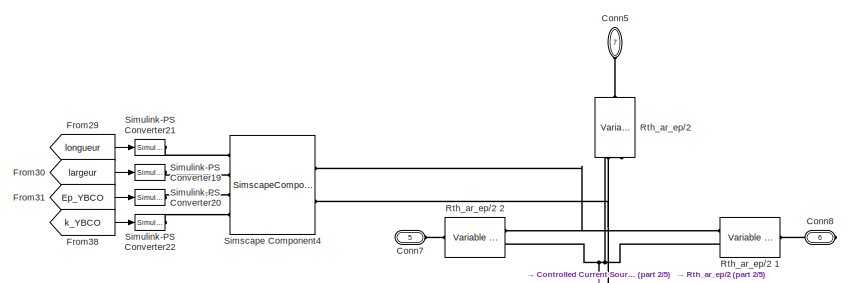
[diagram: YBCO  - part 1/5, top center region]
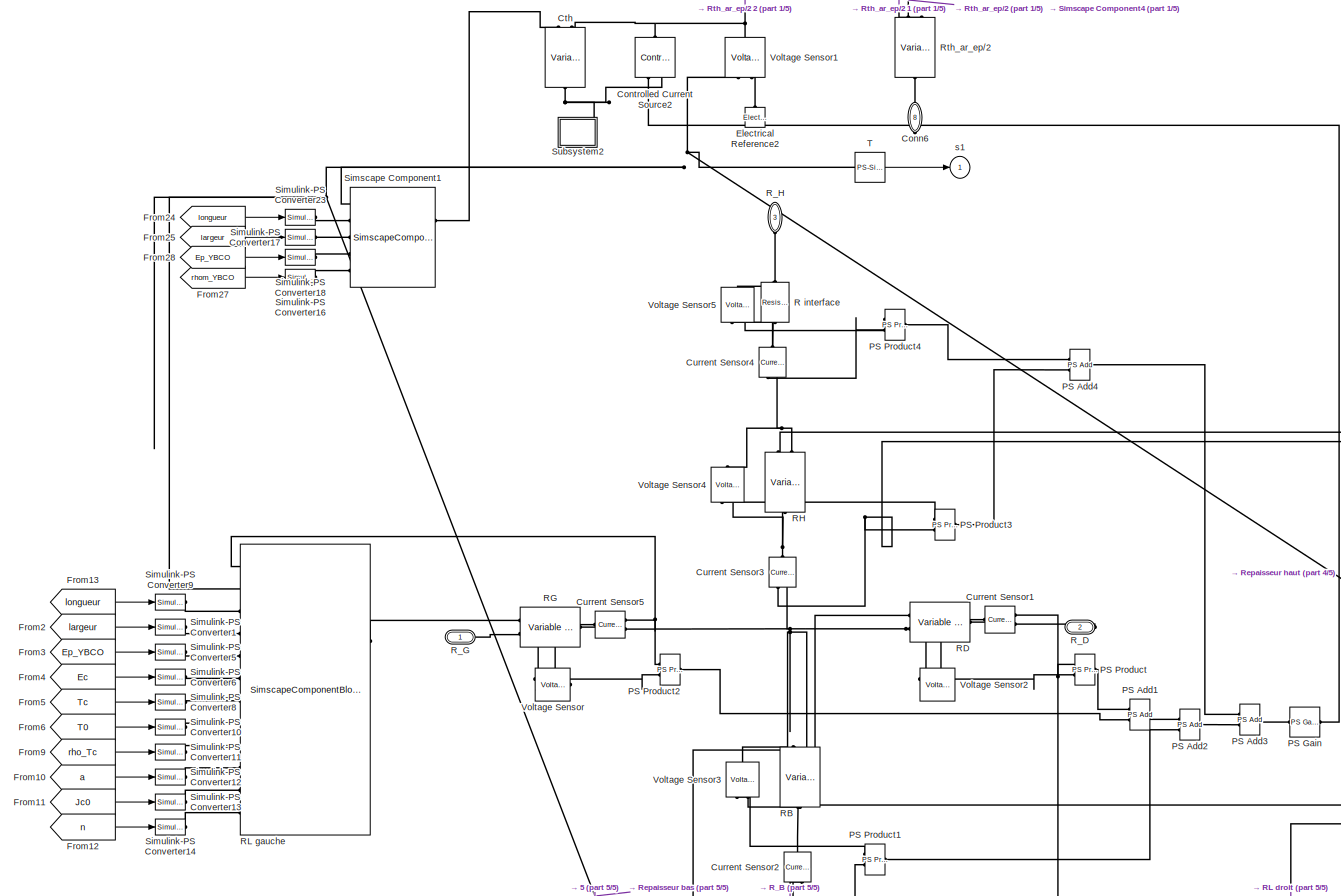
[diagram: YBCO  - part 2/5, central region]
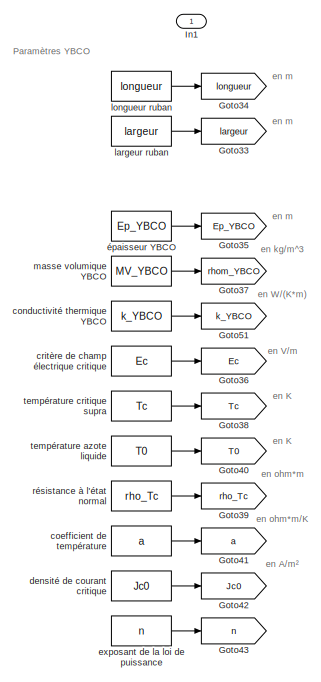
[diagram: YBCO  - part 3/5, middle left region]
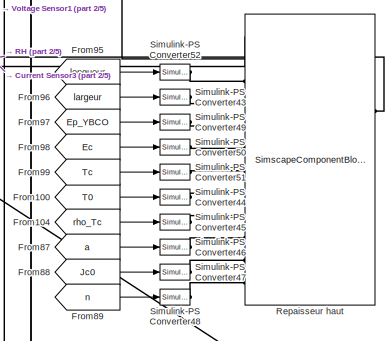
[diagram: YBCO  - part 4/5, middle right region]
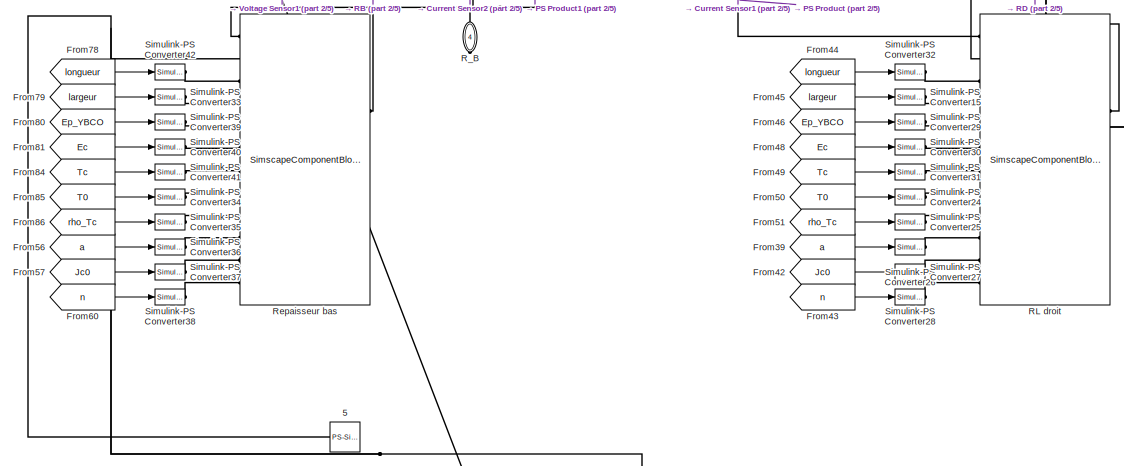
[diagram: YBCO  - part 5/5, bottom center region]
BLOCK [SubSystem] YBCO 
  Ports = [1, 1, 0, 0, 0, 4, 4]
  RequestExecContextInheritance = off
BLOCK [Reference] YBCO /    5  REF=nesl_utility/PS-Simulink
Converter
  Ports = [0, 1, 0, 0, 0, 1]
  SourceBlock = nesl_utility/PS-Simulink\nConverter
  SourceProductBaseCode = SS
  SourceProductName = Simscape
  SourceType = PS-Simulink\nConverter
BLOCK [PMIOPort] YBCO /Conn5
  Port = 7
  Side = Left
BLOCK [PMIOPort] YBCO /Conn6
  Port = 8
  Side = Right
BLOCK [PMIOPort] YBCO /Conn7
  Port = 5
  Side = Left
BLOCK [PMIOPort] YBCO /Conn8
  Port = 6
  Side = Right
BLOCK [Reference] YBCO /Controlled Current Source2  REF=fl_lib/Electrical/Electrical Sources/Controlled Current
Source
  Ports = [0, 0, 0, 0, 0, 1, 2]
  SourceBlock = fl_lib/Electrical/Electrical Sources/Controlled Current\nSource
  SourceProductBaseCode = SS
  SourceProductName = Simscape
  SourceType = Controlled Current\nSource
BLOCK [Reference] YBCO /Cth  REF=ee_lib/Passive/Variable Capacitor
  Ports = [0, 0, 0, 0, 0, 2, 1]
  SourceBlock = ee_lib/Passive/Variable Capacitor
  SourceProductBaseCode = PS
  SourceProductName = Simscape Electrical
  SourceType = Variable Capacitor
BLOCK [Reference] YBCO /Current Sensor1  REF=fl_lib/Electrical/Electrical Sensors/Current Sensor
  Ports = [0, 0, 0, 0, 0, 1, 2]
  SourceBlock = fl_lib/Electrical/Electrical Sensors/Current Sensor
  SourceProductBaseCode = SS
  SourceProductName = Simscape
  SourceType = Current Sensor
BLOCK [Reference] YBCO /Current Sensor2  REF=fl_lib/Electrical/Electrical Sensors/Current Sensor
  Ports = [0, 0, 0, 0, 0, 1, 2]
  SourceBlock = fl_lib/Electrical/Electrical Sensors/Current Sensor
  SourceProductBaseCode = SS
  SourceProductName = Simscape
  SourceType = Current Sensor
BLOCK [Reference] YBCO /Current Sensor3  REF=fl_lib/Electrical/Electrical Sensors/Current Sensor
  Ports = [0, 0, 0, 0, 0, 1, 2]
  SourceBlock = fl_lib/Electrical/Electrical Sensors/Current Sensor
  SourceProductBaseCode = SS
  SourceProductName = Simscape
  SourceType = Current Sensor
BLOCK [Reference] YBCO /Current Sensor4  REF=fl_lib/Electrical/Electrical Sensors/Current Sensor
  Ports = [0, 0, 0, 0, 0, 1, 2]
  SourceBlock = fl_lib/Electrical/Electrical Sensors/Current Sensor
  SourceProductBaseCode = SS
  SourceProductName = Simscape
  SourceType = Current Sensor
BLOCK [Reference] YBCO /Current Sensor5  REF=fl_lib/Electrical/Electrical Sensors/Current Sensor
  Ports = [0, 0, 0, 0, 0, 1, 2]
  SourceBlock = fl_lib/Electrical/Electrical Sensors/Current Sensor
  SourceProductBaseCode = SS
  SourceProductName = Simscape
  SourceType = Current Sensor
BLOCK [Reference] YBCO /Electrical Reference2  REF=fl_lib/Electrical/Electrical Elements/Electrical Reference
  Ports = [0, 0, 0, 0, 0, 1]
  SourceBlock = fl_lib/Electrical/Electrical Elements/Electrical Reference
  SourceProductBaseCode = SS
  SourceProductName = Simscape
  SourceType = Electrical Reference
BLOCK [From] YBCO /From10
  GotoTag = a
BLOCK [From] YBCO /From100
  GotoTag = T0
BLOCK [From] YBCO /From104
  GotoTag = rho_Tc
BLOCK [From] YBCO /From11
  GotoTag = Jc0
BLOCK [From] YBCO /From12
  GotoTag = n
BLOCK [From] YBCO /From13
  GotoTag = longueur
BLOCK [From] YBCO /From2
  GotoTag = largeur
BLOCK [From] YBCO /From24
  GotoTag = longueur
BLOCK [From] YBCO /From25
  GotoTag = largeur
BLOCK [From] YBCO /From27
  GotoTag = rhom_YBCO
BLOCK [From] YBCO /From28
  GotoTag = Ep_YBCO
BLOCK [From] YBCO /From29
  GotoTag = longueur
BLOCK [From] YBCO /From3
  GotoTag = Ep_YBCO
BLOCK [From] YBCO /From30
  GotoTag = largeur
BLOCK [From] YBCO /From31
  GotoTag = Ep_YBCO
BLOCK [From] YBCO /From38
  GotoTag = k_YBCO
BLOCK [From] YBCO /From39
  GotoTag = a
BLOCK [From] YBCO /From4
  GotoTag = Ec
BLOCK [From] YBCO /From42
  GotoTag = Jc0
BLOCK [From] YBCO /From43
  GotoTag = n
BLOCK [From] YBCO /From44
  GotoTag = longueur
BLOCK [From] YBCO /From45
  GotoTag = largeur
BLOCK [From] YBCO /From46
  GotoTag = Ep_YBCO
BLOCK [From] YBCO /From48
  GotoTag = Ec
BLOCK [From] YBCO /From49
  GotoTag = Tc
BLOCK [From] YBCO /From5
  GotoTag = Tc
BLOCK [From] YBCO /From50
  GotoTag = T0
BLOCK [From] YBCO /From51
  GotoTag = rho_Tc
BLOCK [From] YBCO /From56
  GotoTag = a
BLOCK [From] YBCO /From57
  GotoTag = Jc0
BLOCK [From] YBCO /From6
  GotoTag = T0
BLOCK [From] YBCO /From60
  GotoTag = n
BLOCK [From] YBCO /From78
  GotoTag = longueur
BLOCK [From] YBCO /From79
  GotoTag = largeur
BLOCK [From] YBCO /From80
  GotoTag = Ep_YBCO
BLOCK [From] YBCO /From81
  GotoTag = Ec
BLOCK [From] YBCO /From84
  GotoTag = Tc
BLOCK [From] YBCO /From85
  GotoTag = T0
BLOCK [From] YBCO /From86
  GotoTag = rho_Tc
BLOCK [From] YBCO /From87
  GotoTag = a
BLOCK [From] YBCO /From88
  GotoTag = Jc0
BLOCK [From] YBCO /From89
  GotoTag = n
BLOCK [From] YBCO /From9
  GotoTag = rho_Tc
BLOCK [From] YBCO /From95
  GotoTag = longueur
BLOCK [From] YBCO /From96
  GotoTag = largeur
BLOCK [From] YBCO /From97
  GotoTag = Ep_YBCO
BLOCK [From] YBCO /From98
  GotoTag = Ec
BLOCK [From] YBCO /From99
  GotoTag = Tc
BLOCK [Goto] YBCO /Goto33
  GotoTag = largeur
BLOCK [Goto] YBCO /Goto34
  GotoTag = longueur
BLOCK [Goto] YBCO /Goto35
  GotoTag = Ep_YBCO
BLOCK [Goto] YBCO /Goto36
  GotoTag = Ec
BLOCK [Goto] YBCO /Goto37
  GotoTag = rhom_YBCO
BLOCK [Goto] YBCO /Goto38
  GotoTag = Tc
BLOCK [Goto] YBCO /Goto39
  GotoTag = rho_Tc
BLOCK [Goto] YBCO /Goto40
  GotoTag = T0
BLOCK [Goto] YBCO /Goto41
  GotoTag = a
BLOCK [Goto] YBCO /Goto42
  GotoTag = Jc0
BLOCK [Goto] YBCO /Goto43
  GotoTag = n
BLOCK [Goto] YBCO /Goto51
  GotoTag = k_YBCO
BLOCK [Inport] YBCO /In1
  IconDisplay = Port number
BLOCK [Reference] YBCO /PS Add1  REF=fl_lib/Physical Signals/Functions/PS Add
  Ports = [0, 0, 0, 0, 0, 2, 1]
  SourceBlock = fl_lib/Physical Signals/Functions/PS Add
  SourceProductBaseCode = SS
  SourceProductName = Simscape
  SourceType = PS Add
BLOCK [Reference] YBCO /PS Add2  REF=fl_lib/Physical Signals/Functions/PS Add
  Ports = [0, 0, 0, 0, 0, 2, 1]
  SourceBlock = fl_lib/Physical Signals/Functions/PS Add
  SourceProductBaseCode = SS
  SourceProductName = Simscape
  SourceType = PS Add
BLOCK [Reference] YBCO /PS Add3  REF=fl_lib/Physical Signals/Functions/PS Add
  Ports = [0, 0, 0, 0, 0, 2, 1]
  SourceBlock = fl_lib/Physical Signals/Functions/PS Add
  SourceProductBaseCode = SS
  SourceProductName = Simscape
  SourceType = PS Add
BLOCK [Reference] YBCO /PS Add4  REF=fl_lib/Physical Signals/Functions/PS Add
  Ports = [0, 0, 0, 0, 0, 2, 1]
  SourceBlock = fl_lib/Physical Signals/Functions/PS Add
  SourceProductBaseCode = SS
  SourceProductName = Simscape
  SourceType = PS Add
BLOCK [Reference] YBCO /PS Gain  REF=fl_lib/Physical Signals/Functions/PS Gain
  Ports = [0, 0, 0, 0, 0, 1, 1]
  SourceBlock = fl_lib/Physical Signals/Functions/PS Gain
  SourceProductBaseCode = SS
  SourceProductName = Simscape
  SourceType = PS Gain
BLOCK [Reference] YBCO /PS Product  REF=fl_lib/Physical Signals/Functions/PS Product
  Ports = [0, 0, 0, 0, 0, 2, 1]
  SourceBlock = fl_lib/Physical Signals/Functions/PS Product
  SourceProductBaseCode = SS
  SourceProductName = Simscape
  SourceType = PS Product
BLOCK [Reference] YBCO /PS Product1  REF=fl_lib/Physical Signals/Functions/PS Product
  Ports = [0, 0, 0, 0, 0, 2, 1]
  SourceBlock = fl_lib/Physical Signals/Functions/PS Product
  SourceProductBaseCode = SS
  SourceProductName = Simscape
  SourceType = PS Product
BLOCK [Reference] YBCO /PS Product2  REF=fl_lib/Physical Signals/Functions/PS Product
  Ports = [0, 0, 0, 0, 0, 2, 1]
  SourceBlock = fl_lib/Physical Signals/Functions/PS Product
  SourceProductBaseCode = SS
  SourceProductName = Simscape
  SourceType = PS Product
BLOCK [Reference] YBCO /PS Product3  REF=fl_lib/Physical Signals/Functions/PS Product
  Ports = [0, 0, 0, 0, 0, 2, 1]
  SourceBlock = fl_lib/Physical Signals/Functions/PS Product
  SourceProductBaseCode = SS
  SourceProductName = Simscape
  SourceType = PS Product
BLOCK [Reference] YBCO /PS Product4  REF=fl_lib/Physical Signals/Functions/PS Product
  Ports = [0, 0, 0, 0, 0, 2, 1]
  SourceBlock = fl_lib/Physical Signals/Functions/PS Product
  SourceProductBaseCode = SS
  SourceProductName = Simscape
  SourceType = PS Product
BLOCK [Reference] YBCO /R interface  REF=ee_lib/Passive/Resistor
  Ports = [0, 0, 0, 0, 0, 1, 1]
  SourceBlock = ee_lib/Passive/Resistor
  SourceProductBaseCode = PS
  SourceProductName = Simscape Electrical
  SourceType = Resistor
BLOCK [Reference] YBCO /RB  REF=fl_lib/Electrical/Electrical Elements/Variable Resistor
  Ports = [0, 0, 0, 0, 0, 2, 1]
  SourceBlock = fl_lib/Electrical/Electrical Elements/Variable Resistor
  SourceProductBaseCode = SS
  SourceProductName = Simscape
  SourceType = Variable Resistor
BLOCK [Reference] YBCO /RD  REF=fl_lib/Electrical/Electrical Elements/Variable Resistor
  Ports = [0, 0, 0, 0, 0, 2, 1]
  SourceBlock = fl_lib/Electrical/Electrical Elements/Variable Resistor
  SourceProductBaseCode = SS
  SourceProductName = Simscape
  SourceType = Variable Resistor
BLOCK [Reference] YBCO /RG  REF=fl_lib/Electrical/Electrical Elements/Variable Resistor
  Ports = [0, 0, 0, 0, 0, 2, 1]
  SourceBlock = fl_lib/Electrical/Electrical Elements/Variable Resistor
  SourceProductBaseCode = SS
  SourceProductName = Simscape
  SourceType = Variable Resistor
BLOCK [Reference] YBCO /RH  REF=fl_lib/Electrical/Electrical Elements/Variable Resistor
  Ports = [0, 0, 0, 0, 0, 2, 1]
  SourceBlock = fl_lib/Electrical/Electrical Elements/Variable Resistor
  SourceProductBaseCode = SS
  SourceProductName = Simscape
  SourceType = Variable Resistor
BLOCK [SimscapeComponentBlock] YBCO /RL droit
  ClassName = Res_Elec_YBCO_L
  ComponentPath = Res_Elec_YBCO_L
  ComponentVariantNames = Res_Elec_YBCO_L
  ComponentVariants = Res_Elec_YBCO_L
  CopyFcn = simscape.engine.sli.internal.componentblockcallback(gcbh,'COPY')
  MaskType = UseFunction1
  Ports = [0, 0, 0, 0, 0, 12, 2]
  PreCopyFcn = simscape.engine.sli.internal.componentblockcallback(gcbh,'PRECOPY')
  PreDeleteFcn = simscape.engine.sli.internal.componentblockcallback(gcbh,'PREDELETE')
  SchemaVersion = 1
  SourceFile = Res_Elec_YBCO_L
BLOCK [SimscapeComponentBlock] YBCO /RL gauche
  ClassName = Res_Elec_YBCO_L
  ComponentPath = Res_Elec_YBCO_L
  ComponentVariantNames = Res_Elec_YBCO_L
  ComponentVariants = Res_Elec_YBCO_L
  CopyFcn = simscape.engine.sli.internal.componentblockcallback(gcbh,'COPY')
  MaskType = UseFunction1
  Ports = [0, 0, 0, 0, 0, 12, 2]
  PreCopyFcn = simscape.engine.sli.internal.componentblockcallback(gcbh,'PRECOPY')
  PreDeleteFcn = simscape.engine.sli.internal.componentblockcallback(gcbh,'PREDELETE')
  SchemaVersion = 1
  SourceFile = Res_Elec_YBCO_L
BLOCK [PMIOPort] YBCO /R_B
  Port = 4
  Side = Right
BLOCK [PMIOPort] YBCO /R_D
  Port = 2
  Side = Right
BLOCK [PMIOPort] YBCO /R_G
  Side = Left
BLOCK [PMIOPort] YBCO /R_H
  Port = 3
  Side = Left
BLOCK [SimscapeComponentBlock] YBCO /Repaisseur bas
  ClassName = Res_Elec_YBCO_Ep
  ComponentPath = Res_Elec_YBCO_Ep
  ComponentVariantNames = Res_Elec_YBCO_Ep
  ComponentVariants = Res_Elec_YBCO_Ep
  CopyFcn = simscape.engine.sli.internal.componentblockcallback(gcbh,'COPY')
  MaskType = UseFunction1
  Ports = [0, 0, 0, 0, 0, 12, 2]
  PreCopyFcn = simscape.engine.sli.internal.componentblockcallback(gcbh,'PRECOPY')
  PreDeleteFcn = simscape.engine.sli.internal.componentblockcallback(gcbh,'PREDELETE')
  SchemaVersion = 1
  SourceFile = Res_Elec_YBCO_Ep
BLOCK [SimscapeComponentBlock] YBCO /Repaisseur haut
  ClassName = Res_Elec_YBCO_Ep
  ComponentPath = Res_Elec_YBCO_Ep
  ComponentVariantNames = Res_Elec_YBCO_Ep
  ComponentVariants = Res_Elec_YBCO_Ep
  CopyFcn = simscape.engine.sli.internal.componentblockcallback(gcbh,'COPY')
  MaskType = UseFunction1
  Ports = [0, 0, 0, 0, 0, 12, 2]
  PreCopyFcn = simscape.engine.sli.internal.componentblockcallback(gcbh,'PRECOPY')
  PreDeleteFcn = simscape.engine.sli.internal.componentblockcallback(gcbh,'PREDELETE')
  SchemaVersion = 1
  SourceFile = Res_Elec_YBCO_Ep
BLOCK [Reference] YBCO /Rth_ar_ep//2    REF=fl_lib/Electrical/Electrical Elements/Variable Resistor
  Ports = [0, 0, 0, 0, 0, 2, 1]
  SourceBlock = fl_lib/Electrical/Electrical Elements/Variable Resistor
  SourceProductBaseCode = SS
  SourceProductName = Simscape
  SourceType = Variable Resistor
BLOCK [Reference] YBCO /Rth_ar_ep//2      REF=fl_lib/Electrical/Electrical Elements/Variable Resistor
  Ports = [0, 0, 0, 0, 0, 2, 1]
  SourceBlock = fl_lib/Electrical/Electrical Elements/Variable Resistor
  SourceProductBaseCode = SS
  SourceProductName = Simscape
  SourceType = Variable Resistor
BLOCK [Reference] YBCO /Rth_ar_ep//2  1  REF=fl_lib/Electrical/Electrical Elements/Variable Resistor
  Ports = [0, 0, 0, 0, 0, 2, 1]
  SourceBlock = fl_lib/Electrical/Electrical Elements/Variable Resistor
  SourceProductBaseCode = SS
  SourceProductName = Simscape
  SourceType = Variable Resistor
BLOCK [Reference] YBCO /Rth_ar_ep//2  2  REF=fl_lib/Electrical/Electrical Elements/Variable Resistor
  Ports = [0, 0, 0, 0, 0, 2, 1]
  SourceBlock = fl_lib/Electrical/Electrical Elements/Variable Resistor
  SourceProductBaseCode = SS
  SourceProductName = Simscape
  SourceType = Variable Resistor
BLOCK [SimscapeComponentBlock] YBCO /Simscape Component1
  ClassName = Cth_YBCO
  ComponentPath = Cth_YBCO
  ComponentVariantNames = Cth_YBCO
  ComponentVariants = Cth_YBCO
  CopyFcn = simscape.engine.sli.internal.componentblockcallback(gcbh,'COPY')
  MaskType = UseFunction1
  Ports = [0, 0, 0, 0, 0, 5, 2]
  PreCopyFcn = simscape.engine.sli.internal.componentblockcallback(gcbh,'PRECOPY')
  PreDeleteFcn = simscape.engine.sli.internal.componentblockcallback(gcbh,'PREDELETE')
  SchemaVersion = 1
  SourceFile = Cth_YBCO
BLOCK [SimscapeComponentBlock] YBCO /Simscape Component4
  ClassName = Rth_YBCO
  ComponentPath = Rth_YBCO
  ComponentVariantNames = Rth_YBCO
  ComponentVariants = Rth_YBCO
  CopyFcn = simscape.engine.sli.internal.componentblockcallback(gcbh,'COPY')
  MaskType = UseFunction1
  Ports = [0, 0, 0, 0, 0, 4, 2]
  PreCopyFcn = simscape.engine.sli.internal.componentblockcallback(gcbh,'PRECOPY')
  PreDeleteFcn = simscape.engine.sli.internal.componentblockcallback(gcbh,'PREDELETE')
  SchemaVersion = 1
  SourceFile = Rth_YBCO
BLOCK [Reference] YBCO /Simulink-PS Converter1  REF=nesl_utility/Simulink-PS
Converter
  Ports = [1, 0, 0, 0, 0, 0, 1]
  SourceBlock = nesl_utility/Simulink-PS\nConverter
  SourceProductBaseCode = SS
  SourceProductName = Simscape
  SourceType = Simulink-PS\nConverter
BLOCK [Reference] YBCO /Simulink-PS Converter10  REF=nesl_utility/Simulink-PS
Converter
  Ports = [1, 0, 0, 0, 0, 0, 1]
  SourceBlock = nesl_utility/Simulink-PS\nConverter
  SourceProductBaseCode = SS
  SourceProductName = Simscape
  SourceType = Simulink-PS\nConverter
BLOCK [Reference] YBCO /Simulink-PS Converter11  REF=nesl_utility/Simulink-PS
Converter
  Ports = [1, 0, 0, 0, 0, 0, 1]
  SourceBlock = nesl_utility/Simulink-PS\nConverter
  SourceProductBaseCode = SS
  SourceProductName = Simscape
  SourceType = Simulink-PS\nConverter
BLOCK [Reference] YBCO /Simulink-PS Converter12  REF=nesl_utility/Simulink-PS
Converter
  Ports = [1, 0, 0, 0, 0, 0, 1]
  SourceBlock = nesl_utility/Simulink-PS\nConverter
  SourceProductBaseCode = SS
  SourceProductName = Simscape
  SourceType = Simulink-PS\nConverter
BLOCK [Reference] YBCO /Simulink-PS Converter13  REF=nesl_utility/Simulink-PS
Converter
  Ports = [1, 0, 0, 0, 0, 0, 1]
  SourceBlock = nesl_utility/Simulink-PS\nConverter
  SourceProductBaseCode = SS
  SourceProductName = Simscape
  SourceType = Simulink-PS\nConverter
BLOCK [Reference] YBCO /Simulink-PS Converter14  REF=nesl_utility/Simulink-PS
Converter
  Ports = [1, 0, 0, 0, 0, 0, 1]
  SourceBlock = nesl_utility/Simulink-PS\nConverter
  SourceProductBaseCode = SS
  SourceProductName = Simscape
  SourceType = Simulink-PS\nConverter
BLOCK [Reference] YBCO /Simulink-PS Converter15  REF=nesl_utility/Simulink-PS
Converter
  Ports = [1, 0, 0, 0, 0, 0, 1]
  SourceBlock = nesl_utility/Simulink-PS\nConverter
  SourceProductBaseCode = SS
  SourceProductName = Simscape
  SourceType = Simulink-PS\nConverter
BLOCK [Reference] YBCO /Simulink-PS Converter16  REF=nesl_utility/Simulink-PS
Converter
  Ports = [1, 0, 0, 0, 0, 0, 1]
  SourceBlock = nesl_utility/Simulink-PS\nConverter
  SourceProductBaseCode = SS
  SourceProductName = Simscape
  SourceType = Simulink-PS\nConverter
BLOCK [Reference] YBCO /Simulink-PS Converter17  REF=nesl_utility/Simulink-PS
Converter
  Ports = [1, 0, 0, 0, 0, 0, 1]
  SourceBlock = nesl_utility/Simulink-PS\nConverter
  SourceProductBaseCode = SS
  SourceProductName = Simscape
  SourceType = Simulink-PS\nConverter
BLOCK [Reference] YBCO /Simulink-PS Converter18  REF=nesl_utility/Simulink-PS
Converter
  Ports = [1, 0, 0, 0, 0, 0, 1]
  SourceBlock = nesl_utility/Simulink-PS\nConverter
  SourceProductBaseCode = SS
  SourceProductName = Simscape
  SourceType = Simulink-PS\nConverter
BLOCK [Reference] YBCO /Simulink-PS Converter19  REF=nesl_utility/Simulink-PS
Converter
  Ports = [1, 0, 0, 0, 0, 0, 1]
  SourceBlock = nesl_utility/Simulink-PS\nConverter
  SourceProductBaseCode = SS
  SourceProductName = Simscape
  SourceType = Simulink-PS\nConverter
BLOCK [Reference] YBCO /Simulink-PS Converter20  REF=nesl_utility/Simulink-PS
Converter
  Ports = [1, 0, 0, 0, 0, 0, 1]
  SourceBlock = nesl_utility/Simulink-PS\nConverter
  SourceProductBaseCode = SS
  SourceProductName = Simscape
  SourceType = Simulink-PS\nConverter
BLOCK [Reference] YBCO /Simulink-PS Converter21  REF=nesl_utility/Simulink-PS
Converter
  Ports = [1, 0, 0, 0, 0, 0, 1]
  SourceBlock = nesl_utility/Simulink-PS\nConverter
  SourceProductBaseCode = SS
  SourceProductName = Simscape
  SourceType = Simulink-PS\nConverter
BLOCK [Reference] YBCO /Simulink-PS Converter22  REF=nesl_utility/Simulink-PS
Converter
  Ports = [1, 0, 0, 0, 0, 0, 1]
  SourceBlock = nesl_utility/Simulink-PS\nConverter
  SourceProductBaseCode = SS
  SourceProductName = Simscape
  SourceType = Simulink-PS\nConverter
BLOCK [Reference] YBCO /Simulink-PS Converter23  REF=nesl_utility/Simulink-PS
Converter
  Ports = [1, 0, 0, 0, 0, 0, 1]
  SourceBlock = nesl_utility/Simulink-PS\nConverter
  SourceProductBaseCode = SS
  SourceProductName = Simscape
  SourceType = Simulink-PS\nConverter
BLOCK [Reference] YBCO /Simulink-PS Converter24  REF=nesl_utility/Simulink-PS
Converter
  Ports = [1, 0, 0, 0, 0, 0, 1]
  SourceBlock = nesl_utility/Simulink-PS\nConverter
  SourceProductBaseCode = SS
  SourceProductName = Simscape
  SourceType = Simulink-PS\nConverter
BLOCK [Reference] YBCO /Simulink-PS Converter25  REF=nesl_utility/Simulink-PS
Converter
  Ports = [1, 0, 0, 0, 0, 0, 1]
  SourceBlock = nesl_utility/Simulink-PS\nConverter
  SourceProductBaseCode = SS
  SourceProductName = Simscape
  SourceType = Simulink-PS\nConverter
BLOCK [Reference] YBCO /Simulink-PS Converter26  REF=nesl_utility/Simulink-PS
Converter
  Ports = [1, 0, 0, 0, 0, 0, 1]
  SourceBlock = nesl_utility/Simulink-PS\nConverter
  SourceProductBaseCode = SS
  SourceProductName = Simscape
  SourceType = Simulink-PS\nConverter
BLOCK [Reference] YBCO /Simulink-PS Converter27  REF=nesl_utility/Simulink-PS
Converter
  Ports = [1, 0, 0, 0, 0, 0, 1]
  SourceBlock = nesl_utility/Simulink-PS\nConverter
  SourceProductBaseCode = SS
  SourceProductName = Simscape
  SourceType = Simulink-PS\nConverter
BLOCK [Reference] YBCO /Simulink-PS Converter28  REF=nesl_utility/Simulink-PS
Converter
  Ports = [1, 0, 0, 0, 0, 0, 1]
  SourceBlock = nesl_utility/Simulink-PS\nConverter
  SourceProductBaseCode = SS
  SourceProductName = Simscape
  SourceType = Simulink-PS\nConverter
BLOCK [Reference] YBCO /Simulink-PS Converter29  REF=nesl_utility/Simulink-PS
Converter
  Ports = [1, 0, 0, 0, 0, 0, 1]
  SourceBlock = nesl_utility/Simulink-PS\nConverter
  SourceProductBaseCode = SS
  SourceProductName = Simscape
  SourceType = Simulink-PS\nConverter
BLOCK [Reference] YBCO /Simulink-PS Converter30  REF=nesl_utility/Simulink-PS
Converter
  Ports = [1, 0, 0, 0, 0, 0, 1]
  SourceBlock = nesl_utility/Simulink-PS\nConverter
  SourceProductBaseCode = SS
  SourceProductName = Simscape
  SourceType = Simulink-PS\nConverter
BLOCK [Reference] YBCO /Simulink-PS Converter31  REF=nesl_utility/Simulink-PS
Converter
  Ports = [1, 0, 0, 0, 0, 0, 1]
  SourceBlock = nesl_utility/Simulink-PS\nConverter
  SourceProductBaseCode = SS
  SourceProductName = Simscape
  SourceType = Simulink-PS\nConverter
BLOCK [Reference] YBCO /Simulink-PS Converter32  REF=nesl_utility/Simulink-PS
Converter
  Ports = [1, 0, 0, 0, 0, 0, 1]
  SourceBlock = nesl_utility/Simulink-PS\nConverter
  SourceProductBaseCode = SS
  SourceProductName = Simscape
  SourceType = Simulink-PS\nConverter
BLOCK [Reference] YBCO /Simulink-PS Converter33  REF=nesl_utility/Simulink-PS
Converter
  Ports = [1, 0, 0, 0, 0, 0, 1]
  SourceBlock = nesl_utility/Simulink-PS\nConverter
  SourceProductBaseCode = SS
  SourceProductName = Simscape
  SourceType = Simulink-PS\nConverter
BLOCK [Reference] YBCO /Simulink-PS Converter34  REF=nesl_utility/Simulink-PS
Converter
  Ports = [1, 0, 0, 0, 0, 0, 1]
  SourceBlock = nesl_utility/Simulink-PS\nConverter
  SourceProductBaseCode = SS
  SourceProductName = Simscape
  SourceType = Simulink-PS\nConverter
BLOCK [Reference] YBCO /Simulink-PS Converter35  REF=nesl_utility/Simulink-PS
Converter
  Ports = [1, 0, 0, 0, 0, 0, 1]
  SourceBlock = nesl_utility/Simulink-PS\nConverter
  SourceProductBaseCode = SS
  SourceProductName = Simscape
  SourceType = Simulink-PS\nConverter
BLOCK [Reference] YBCO /Simulink-PS Converter36  REF=nesl_utility/Simulink-PS
Converter
  Ports = [1, 0, 0, 0, 0, 0, 1]
  SourceBlock = nesl_utility/Simulink-PS\nConverter
  SourceProductBaseCode = SS
  SourceProductName = Simscape
  SourceType = Simulink-PS\nConverter
BLOCK [Reference] YBCO /Simulink-PS Converter37  REF=nesl_utility/Simulink-PS
Converter
  Ports = [1, 0, 0, 0, 0, 0, 1]
  SourceBlock = nesl_utility/Simulink-PS\nConverter
  SourceProductBaseCode = SS
  SourceProductName = Simscape
  SourceType = Simulink-PS\nConverter
BLOCK [Reference] YBCO /Simulink-PS Converter38  REF=nesl_utility/Simulink-PS
Converter
  Ports = [1, 0, 0, 0, 0, 0, 1]
  SourceBlock = nesl_utility/Simulink-PS\nConverter
  SourceProductBaseCode = SS
  SourceProductName = Simscape
  SourceType = Simulink-PS\nConverter
BLOCK [Reference] YBCO /Simulink-PS Converter39  REF=nesl_utility/Simulink-PS
Converter
  Ports = [1, 0, 0, 0, 0, 0, 1]
  SourceBlock = nesl_utility/Simulink-PS\nConverter
  SourceProductBaseCode = SS
  SourceProductName = Simscape
  SourceType = Simulink-PS\nConverter
BLOCK [Reference] YBCO /Simulink-PS Converter40  REF=nesl_utility/Simulink-PS
Converter
  Ports = [1, 0, 0, 0, 0, 0, 1]
  SourceBlock = nesl_utility/Simulink-PS\nConverter
  SourceProductBaseCode = SS
  SourceProductName = Simscape
  SourceType = Simulink-PS\nConverter
BLOCK [Reference] YBCO /Simulink-PS Converter41  REF=nesl_utility/Simulink-PS
Converter
  Ports = [1, 0, 0, 0, 0, 0, 1]
  SourceBlock = nesl_utility/Simulink-PS\nConverter
  SourceProductBaseCode = SS
  SourceProductName = Simscape
  SourceType = Simulink-PS\nConverter
BLOCK [Reference] YBCO /Simulink-PS Converter42  REF=nesl_utility/Simulink-PS
Converter
  Ports = [1, 0, 0, 0, 0, 0, 1]
  SourceBlock = nesl_utility/Simulink-PS\nConverter
  SourceProductBaseCode = SS
  SourceProductName = Simscape
  SourceType = Simulink-PS\nConverter
BLOCK [Reference] YBCO /Simulink-PS Converter43  REF=nesl_utility/Simulink-PS
Converter
  Ports = [1, 0, 0, 0, 0, 0, 1]
  SourceBlock = nesl_utility/Simulink-PS\nConverter
  SourceProductBaseCode = SS
  SourceProductName = Simscape
  SourceType = Simulink-PS\nConverter
BLOCK [Reference] YBCO /Simulink-PS Converter44  REF=nesl_utility/Simulink-PS
Converter
  Ports = [1, 0, 0, 0, 0, 0, 1]
  SourceBlock = nesl_utility/Simulink-PS\nConverter
  SourceProductBaseCode = SS
  SourceProductName = Simscape
  SourceType = Simulink-PS\nConverter
BLOCK [Reference] YBCO /Simulink-PS Converter45  REF=nesl_utility/Simulink-PS
Converter
  Ports = [1, 0, 0, 0, 0, 0, 1]
  SourceBlock = nesl_utility/Simulink-PS\nConverter
  SourceProductBaseCode = SS
  SourceProductName = Simscape
  SourceType = Simulink-PS\nConverter
BLOCK [Reference] YBCO /Simulink-PS Converter46  REF=nesl_utility/Simulink-PS
Converter
  Ports = [1, 0, 0, 0, 0, 0, 1]
  SourceBlock = nesl_utility/Simulink-PS\nConverter
  SourceProductBaseCode = SS
  SourceProductName = Simscape
  SourceType = Simulink-PS\nConverter
BLOCK [Reference] YBCO /Simulink-PS Converter47  REF=nesl_utility/Simulink-PS
Converter
  Ports = [1, 0, 0, 0, 0, 0, 1]
  SourceBlock = nesl_utility/Simulink-PS\nConverter
  SourceProductBaseCode = SS
  SourceProductName = Simscape
  SourceType = Simulink-PS\nConverter
BLOCK [Reference] YBCO /Simulink-PS Converter48  REF=nesl_utility/Simulink-PS
Converter
  Ports = [1, 0, 0, 0, 0, 0, 1]
  SourceBlock = nesl_utility/Simulink-PS\nConverter
  SourceProductBaseCode = SS
  SourceProductName = Simscape
  SourceType = Simulink-PS\nConverter
BLOCK [Reference] YBCO /Simulink-PS Converter49  REF=nesl_utility/Simulink-PS
Converter
  Ports = [1, 0, 0, 0, 0, 0, 1]
  SourceBlock = nesl_utility/Simulink-PS\nConverter
  SourceProductBaseCode = SS
  SourceProductName = Simscape
  SourceType = Simulink-PS\nConverter
BLOCK [Reference] YBCO /Simulink-PS Converter5  REF=nesl_utility/Simulink-PS
Converter
  Ports = [1, 0, 0, 0, 0, 0, 1]
  SourceBlock = nesl_utility/Simulink-PS\nConverter
  SourceProductBaseCode = SS
  SourceProductName = Simscape
  SourceType = Simulink-PS\nConverter
BLOCK [Reference] YBCO /Simulink-PS Converter50  REF=nesl_utility/Simulink-PS
Converter
  Ports = [1, 0, 0, 0, 0, 0, 1]
  SourceBlock = nesl_utility/Simulink-PS\nConverter
  SourceProductBaseCode = SS
  SourceProductName = Simscape
  SourceType = Simulink-PS\nConverter
BLOCK [Reference] YBCO /Simulink-PS Converter51  REF=nesl_utility/Simulink-PS
Converter
  Ports = [1, 0, 0, 0, 0, 0, 1]
  SourceBlock = nesl_utility/Simulink-PS\nConverter
  SourceProductBaseCode = SS
  SourceProductName = Simscape
  SourceType = Simulink-PS\nConverter
BLOCK [Reference] YBCO /Simulink-PS Converter52  REF=nesl_utility/Simulink-PS
Converter
  Ports = [1, 0, 0, 0, 0, 0, 1]
  SourceBlock = nesl_utility/Simulink-PS\nConverter
  SourceProductBaseCode = SS
  SourceProductName = Simscape
  SourceType = Simulink-PS\nConverter
BLOCK [Reference] YBCO /Simulink-PS Converter6  REF=nesl_utility/Simulink-PS
Converter
  Ports = [1, 0, 0, 0, 0, 0, 1]
  SourceBlock = nesl_utility/Simulink-PS\nConverter
  SourceProductBaseCode = SS
  SourceProductName = Simscape
  SourceType = Simulink-PS\nConverter
BLOCK [Reference] YBCO /Simulink-PS Converter8  REF=nesl_utility/Simulink-PS
Converter
  Ports = [1, 0, 0, 0, 0, 0, 1]
  SourceBlock = nesl_utility/Simulink-PS\nConverter
  SourceProductBaseCode = SS
  SourceProductName = Simscape
  SourceType = Simulink-PS\nConverter
BLOCK [Reference] YBCO /Simulink-PS Converter9  REF=nesl_utility/Simulink-PS
Converter
  Ports = [1, 0, 0, 0, 0, 0, 1]
  SourceBlock = nesl_utility/Simulink-PS\nConverter
  SourceProductBaseCode = SS
  SourceProductName = Simscape
  SourceType = Simulink-PS\nConverter
BLOCK [SubSystem] YBCO /Subsystem2
  Ports = [0, 0, 0, 0, 0, 1]
  RequestExecContextInheritance = off
BLOCK [PMIOPort] YBCO /Subsystem2/77K 
  Side = Left
BLOCK [Reference] YBCO /Subsystem2/77V (77K)  REF=fl_lib/Electrical/Electrical Sources/DC Voltage Source
  Ports = [0, 0, 0, 0, 0, 1, 1]
  SourceBlock = fl_lib/Electrical/Electrical Sources/DC Voltage Source
  SourceProductBaseCode = SS
  SourceProductName = Simscape
  SourceType = DC Voltage Source
BLOCK [Reference] YBCO /Subsystem2/Electrical Reference2  REF=fl_lib/Electrical/Electrical Elements/Electrical Reference
  Ports = [0, 0, 0, 0, 0, 1]
  SourceBlock = fl_lib/Electrical/Electrical Elements/Electrical Reference
  SourceProductBaseCode = SS
  SourceProductName = Simscape
  SourceType = Electrical Reference
BLOCK [Reference] YBCO /T  REF=nesl_utility/PS-Simulink
Converter
  Ports = [0, 1, 0, 0, 0, 1]
  SourceBlock = nesl_utility/PS-Simulink\nConverter
  SourceProductBaseCode = SS
  SourceProductName = Simscape
  SourceType = PS-Simulink\nConverter
BLOCK [Reference] YBCO /Voltage Sensor  REF=fl_lib/Electrical/Electrical Sensors/Voltage Sensor
  Ports = [0, 0, 0, 0, 0, 1, 2]
  SourceBlock = fl_lib/Electrical/Electrical Sensors/Voltage Sensor
  SourceProductBaseCode = SS
  SourceProductName = Simscape
  SourceType = Voltage Sensor
BLOCK [Reference] YBCO /Voltage Sensor1  REF=fl_lib/Electrical/Electrical Sensors/Voltage Sensor
  Ports = [0, 0, 0, 0, 0, 1, 2]
  SourceBlock = fl_lib/Electrical/Electrical Sensors/Voltage Sensor
  SourceProductBaseCode = SS
  SourceProductName = Simscape
  SourceType = Voltage Sensor
BLOCK [Reference] YBCO /Voltage Sensor2  REF=fl_lib/Electrical/Electrical Sensors/Voltage Sensor
  Ports = [0, 0, 0, 0, 0, 1, 2]
  SourceBlock = fl_lib/Electrical/Electrical Sensors/Voltage Sensor
  SourceProductBaseCode = SS
  SourceProductName = Simscape
  SourceType = Voltage Sensor
BLOCK [Reference] YBCO /Voltage Sensor3  REF=fl_lib/Electrical/Electrical Sensors/Voltage Sensor
  Ports = [0, 0, 0, 0, 0, 1, 2]
  SourceBlock = fl_lib/Electrical/Electrical Sensors/Voltage Sensor
  SourceProductBaseCode = SS
  SourceProductName = Simscape
  SourceType = Voltage Sensor
BLOCK [Reference] YBCO /Voltage Sensor4  REF=fl_lib/Electrical/Electrical Sensors/Voltage Sensor
  Ports = [0, 0, 0, 0, 0, 1, 2]
  SourceBlock = fl_lib/Electrical/Electrical Sensors/Voltage Sensor
  SourceProductBaseCode = SS
  SourceProductName = Simscape
  SourceType = Voltage Sensor
BLOCK [Reference] YBCO /Voltage Sensor5  REF=fl_lib/Electrical/Electrical Sensors/Voltage Sensor
  Ports = [0, 0, 0, 0, 0, 1, 2]
  SourceBlock = fl_lib/Electrical/Electrical Sensors/Voltage Sensor
  SourceProductBaseCode = SS
  SourceProductName = Simscape
  SourceType = Voltage Sensor
BLOCK [Constant] YBCO /coefficient de température
  Value = a
BLOCK [Constant] YBCO /conductivité thermique YBCO
  Value = k_YBCO
BLOCK [Constant] YBCO /critère de champ électrique critique
  Value = Ec
BLOCK [Constant] YBCO /densité de courant critique
  Value = Jc0
BLOCK [Constant] YBCO /exposant de la loi de puissance
  Value = n
BLOCK [Constant] YBCO /largeur ruban
  Value = largeur
BLOCK [Constant] YBCO /longueur ruban
  Value = longueur
BLOCK [Constant] YBCO /masse volumique YBCO
  Value = MV_YBCO
BLOCK [Constant] YBCO /résistance à l'état normal
  Value = rho_Tc
BLOCK [Outport] YBCO /s1
  IconDisplay = Port number
BLOCK [Constant] YBCO /température azote liquide
  Value = T0
BLOCK [Constant] YBCO /température critique supra
  Value = Tc
BLOCK [Constant] YBCO /épaisseur YBCO
  Value = Ep_YBCO
BLOCK [SubSystem] ts
  Ports = [0, 0, 0, 0, 0, 0, 1]
  RequestExecContextInheritance = off
BLOCK [Clock] ts/Clock1
BLOCK [Constant] ts/Constant3
  Value = 0
BLOCK [Constant] ts/Constant5
BLOCK [Constant] ts/Constant7
  Value = 0
BLOCK [If] ts/If
  ElseIfExpressions = u1 >= 0.02 & u1 < 0.2
  IfExpression = u1 < 0.02
  Ports = [1, 3]
BLOCK [SubSystem] ts/If Action Subsystem
  Ports = [1, 1, 0, 0, 0, 0, 0, 1]
  RequestExecContextInheritance = off
  TreatAsAtomicUnit = on
BLOCK [ActionPort] ts/If Action Subsystem/Action Port
  ActionPortLabel = if(u1 < 0.02)
BLOCK [Inport] ts/If Action Subsystem/In1
  IconDisplay = Port number
BLOCK [Outport] ts/If Action Subsystem/Out1
  IconDisplay = Port number
BLOCK [SubSystem] ts/If Action Subsystem1
  Ports = [1, 1, 0, 0, 0, 0, 0, 1]
  RequestExecContextInheritance = off
  TreatAsAtomicUnit = on
BLOCK [ActionPort] ts/If Action Subsystem1/Action Port
  ActionPortLabel = elseif(u1 >= 0.02 & u1 < 0.2)
BLOCK [Inport] ts/If Action Subsystem1/In1
  IconDisplay = Port number
BLOCK [Outport] ts/If Action Subsystem1/Out1
  IconDisplay = Port number
BLOCK [SubSystem] ts/If Action Subsystem2
  Ports = [1, 1, 0, 0, 0, 0, 0, 1]
  RequestExecContextInheritance = off
  TreatAsAtomicUnit = on
BLOCK [ActionPort] ts/If Action Subsystem2/Action Port
  ActionPortLabel = else
BLOCK [Inport] ts/If Action Subsystem2/In1
  IconDisplay = Port number
BLOCK [Outport] ts/If Action Subsystem2/Out1
  IconDisplay = Port number
BLOCK [Merge] ts/Merge
  Inputs = 3
  Ports = [3, 1]
BLOCK [Scope] ts/Scope
  Floating = off
  NumInputPorts = 1
  Ports = [1]
  ScopeSpecificationString = Simulink.scopes.TimeScopeBlockCfg('CurrentConfiguration', extmgr.ConfigurationSet(extmgr.Configuration('Core','General UI',true),extmgr.Configuration('Core','Source UI',true),extmgr.Configuration('Sources','WiredSimulink',true,'DataLoggingVariableName','ScopeData3'),extmgr.Configuration('Visuals','Time Domain',true,'SerializedDisplays',{struct('MinYLimReal','-0.125','MaxYLimReal','1.125','YLabelRe...<+1381ch>
BLOCK [Reference] ts/Simulink-PS Converter4  REF=nesl_utility/Simulink-PS
Converter
  Ports = [1, 0, 0, 0, 0, 0, 1]
  SourceBlock = nesl_utility/Simulink-PS\nConverter
  SourceProductBaseCode = SS
  SourceProductName = Simscape
  SourceType = Simulink-PS\nConverter
BLOCK [PMIOPort] ts/ts
  Side = Right
ANNOTATION Hastelloy: Paramètres argent
ANNOTATION Hastelloy: en kg/m^3
ANNOTATION Hastelloy: en m
ANNOTATION Silver Top: Paramètres argent
ANNOTATION Silver Top: en kg/m^3
ANNOTATION Silver Top: en m
ANNOTATION Silver Top1: Paramètres argent
ANNOTATION Silver Top1: en kg/m^3
ANNOTATION Silver Top1: en m
ANNOTATION YBCO : Paramètres YBCO
ANNOTATION YBCO : en A/m²
ANNOTATION YBCO : en K
ANNOTATION YBCO : en V/m
ANNOTATION YBCO : en W/(K*m)
ANNOTATION YBCO : en kg/m^3
ANNOTATION YBCO : en m
ANNOTATION YBCO : en ohm*m
ANNOTATION YBCO : en ohm*m/K
LINE Cooling/Constant1:1 -> Cooling/Simulink-PS Converter7:1
LINE Cooling/Constant:1 -> Cooling/Simulink-PS Converter2:1
LINE Current Measurement/    2:1 -> Current Measurement/Scope:1
LINE Current Measurement:1 -> Scope1:1
LINE Hastelloy/From12:1 -> Hastelloy/Simulink-PS Converter9:1
LINE Hastelloy/From13:1 -> Hastelloy/Simulink-PS Converter13:1
LINE Hastelloy/From14:1 -> Hastelloy/Simulink-PS Converter1:1
LINE Hastelloy/From15:1 -> Hastelloy/Simulink-PS Converter14:1
LINE Hastelloy/From16:1 -> Hastelloy/Simulink-PS Converter17:1
LINE Hastelloy/From17:1 -> Hastelloy/Simulink-PS Converter15:1
LINE Hastelloy/From18:1 -> Hastelloy/Simulink-PS Converter16:1
LINE Hastelloy/From2:1 -> Hastelloy/Simulink-PS Converter4:1
LINE Hastelloy/From3:1 -> Hastelloy/Simulink-PS Converter7:1
LINE Hastelloy/From4:1 -> Hastelloy/Simulink-PS Converter2:1
LINE Hastelloy/T1:1 -> Hastelloy/Scope:1
LINE Hastelloy/T:1 -> Hastelloy/s:1
LINE Hastelloy/largeur ruban:1 -> Hastelloy/Goto33:1
LINE Hastelloy/longueur ruban:1 -> Hastelloy/Goto34:1
LINE Hastelloy/masse volumique argent:1 -> Hastelloy/Goto45:1
LINE Hastelloy/épaisseur argent:1 -> Hastelloy/Goto44:1
LINE Silver Top/From10:1 -> Silver Top/Simulink-PS Converter4:1
LINE Silver Top/From11:1 -> Silver Top/Simulink-PS Converter11:1
LINE Silver Top/From2:1 -> Silver Top/Simulink-PS Converter10:1
LINE Silver Top/From3:1 -> Silver Top/Simulink-PS Converter8:1
LINE Silver Top/From4:1 -> Silver Top/Simulink-PS Converter2:1
LINE Silver Top/From5:1 -> Silver Top/Simulink-PS Converter6:1
LINE Silver Top/From6:1 -> Silver Top/Simulink-PS Converter3:1
LINE Silver Top/From7:1 -> Silver Top/Simulink-PS Converter5:1
LINE Silver Top/From8:1 -> Silver Top/Simulink-PS Converter7:1
LINE Silver Top/From9:1 -> Silver Top/Simulink-PS Converter12:1
LINE Silver Top/largeur ruban:1 -> Silver Top/Goto33:1
LINE Silver Top/longueur ruban:1 -> Silver Top/Goto34:1
LINE Silver Top/masse volumique argent:1 -> Silver Top/Goto45:1
LINE Silver Top/épaisseur argent:1 -> Silver Top/Goto44:1
LINE Silver Top1/From10:1 -> Silver Top1/Simulink-PS Converter4:1
LINE Silver Top1/From11:1 -> Silver Top1/Simulink-PS Converter11:1
LINE Silver Top1/From2:1 -> Silver Top1/Simulink-PS Converter10:1
LINE Silver Top1/From3:1 -> Silver Top1/Simulink-PS Converter8:1
LINE Silver Top1/From4:1 -> Silver Top1/Simulink-PS Converter2:1
LINE Silver Top1/From5:1 -> Silver Top1/Simulink-PS Converter6:1
LINE Silver Top1/From6:1 -> Silver Top1/Simulink-PS Converter3:1
LINE Silver Top1/From7:1 -> Silver Top1/Simulink-PS Converter5:1
LINE Silver Top1/From8:1 -> Silver Top1/Simulink-PS Converter7:1
LINE Silver Top1/From9:1 -> Silver Top1/Simulink-PS Converter12:1
LINE Silver Top1/largeur ruban:1 -> Silver Top1/Goto33:1
LINE Silver Top1/longueur ruban:1 -> Silver Top1/Goto34:1
LINE Silver Top1/masse volumique argent:1 -> Silver Top1/Goto45:1
LINE Silver Top1/épaisseur argent:1 -> Silver Top1/Goto44:1
LINE YBCO /From100:1 -> YBCO /Simulink-PS Converter44:1
LINE YBCO /From104:1 -> YBCO /Simulink-PS Converter45:1
LINE YBCO /From10:1 -> YBCO /Simulink-PS Converter12:1
LINE YBCO /From11:1 -> YBCO /Simulink-PS Converter13:1
LINE YBCO /From12:1 -> YBCO /Simulink-PS Converter14:1
LINE YBCO /From13:1 -> YBCO /Simulink-PS Converter9:1
LINE YBCO /From24:1 -> YBCO /Simulink-PS Converter23:1
LINE YBCO /From25:1 -> YBCO /Simulink-PS Converter17:1
LINE YBCO /From27:1 -> YBCO /Simulink-PS Converter16:1
LINE YBCO /From28:1 -> YBCO /Simulink-PS Converter18:1
LINE YBCO /From29:1 -> YBCO /Simulink-PS Converter21:1
LINE YBCO /From2:1 -> YBCO /Simulink-PS Converter1:1
LINE YBCO /From30:1 -> YBCO /Simulink-PS Converter19:1
LINE YBCO /From31:1 -> YBCO /Simulink-PS Converter20:1
LINE YBCO /From38:1 -> YBCO /Simulink-PS Converter22:1
LINE YBCO /From39:1 -> YBCO /Simulink-PS Converter26:1
LINE YBCO /From3:1 -> YBCO /Simulink-PS Converter5:1
LINE YBCO /From42:1 -> YBCO /Simulink-PS Converter27:1
LINE YBCO /From43:1 -> YBCO /Simulink-PS Converter28:1
LINE YBCO /From44:1 -> YBCO /Simulink-PS Converter32:1
LINE YBCO /From45:1 -> YBCO /Simulink-PS Converter15:1
LINE YBCO /From46:1 -> YBCO /Simulink-PS Converter29:1
LINE YBCO /From48:1 -> YBCO /Simulink-PS Converter30:1
LINE YBCO /From49:1 -> YBCO /Simulink-PS Converter31:1
LINE YBCO /From4:1 -> YBCO /Simulink-PS Converter6:1
LINE YBCO /From50:1 -> YBCO /Simulink-PS Converter24:1
LINE YBCO /From51:1 -> YBCO /Simulink-PS Converter25:1
LINE YBCO /From56:1 -> YBCO /Simulink-PS Converter36:1
LINE YBCO /From57:1 -> YBCO /Simulink-PS Converter37:1
LINE YBCO /From5:1 -> YBCO /Simulink-PS Converter8:1
LINE YBCO /From60:1 -> YBCO /Simulink-PS Converter38:1
LINE YBCO /From6:1 -> YBCO /Simulink-PS Converter10:1
LINE YBCO /From78:1 -> YBCO /Simulink-PS Converter42:1
LINE YBCO /From79:1 -> YBCO /Simulink-PS Converter33:1
LINE YBCO /From80:1 -> YBCO /Simulink-PS Converter39:1
LINE YBCO /From81:1 -> YBCO /Simulink-PS Converter40:1
LINE YBCO /From84:1 -> YBCO /Simulink-PS Converter41:1
LINE YBCO /From85:1 -> YBCO /Simulink-PS Converter34:1
LINE YBCO /From86:1 -> YBCO /Simulink-PS Converter35:1
LINE YBCO /From87:1 -> YBCO /Simulink-PS Converter46:1
LINE YBCO /From88:1 -> YBCO /Simulink-PS Converter47:1
LINE YBCO /From89:1 -> YBCO /Simulink-PS Converter48:1
LINE YBCO /From95:1 -> YBCO /Simulink-PS Converter52:1
LINE YBCO /From96:1 -> YBCO /Simulink-PS Converter43:1
LINE YBCO /From97:1 -> YBCO /Simulink-PS Converter49:1
LINE YBCO /From98:1 -> YBCO /Simulink-PS Converter50:1
LINE YBCO /From99:1 -> YBCO /Simulink-PS Converter51:1
LINE YBCO /From9:1 -> YBCO /Simulink-PS Converter11:1
LINE YBCO /T:1 -> YBCO /s1:1
LINE YBCO /coefficient de température:1 -> YBCO /Goto41:1
LINE YBCO /conductivité thermique YBCO:1 -> YBCO /Goto51:1
LINE YBCO /critère de champ électrique critique:1 -> YBCO /Goto36:1
LINE YBCO /densité de courant critique:1 -> YBCO /Goto42:1
LINE YBCO /exposant de la loi de puissance:1 -> YBCO /Goto43:1
LINE YBCO /largeur ruban:1 -> YBCO /Goto33:1
LINE YBCO /longueur ruban:1 -> YBCO /Goto34:1
LINE YBCO /masse volumique YBCO:1 -> YBCO /Goto37:1
LINE YBCO /résistance à l'état normal:1 -> YBCO /Goto39:1
LINE YBCO /température azote liquide:1 -> YBCO /Goto40:1
LINE YBCO /température critique supra:1 -> YBCO /Goto38:1
LINE YBCO /épaisseur YBCO:1 -> YBCO /Goto35:1
LINE ts/Clock1:1 -> ts/If:1
LINE ts/Constant3:1 -> ts/If Action Subsystem:1
LINE ts/Constant5:1 -> ts/If Action Subsystem1:1
LINE ts/Constant7:1 -> ts/If Action Subsystem2:1
LINE ts/If Action Subsystem/In1:1 -> ts/If Action Subsystem/Out1:1
LINE ts/If Action Subsystem1/In1:1 -> ts/If Action Subsystem1/Out1:1
LINE ts/If Action Subsystem1:1 -> ts/Merge:2
LINE ts/If Action Subsystem2/In1:1 -> ts/If Action Subsystem2/Out1:1
LINE ts/If Action Subsystem2:1 -> ts/Merge:3
LINE ts/If Action Subsystem:1 -> ts/Merge:1
LINE ts/If:1 -> ts/If Action Subsystem:ifaction
LINE ts/If:2 -> ts/If Action Subsystem1:ifaction
LINE ts/If:3 -> ts/If Action Subsystem2:ifaction
NET ts/Merge:1 -> ts/Scope:1, ts/Simulink-PS Converter4:1
PLINE Cooling/77V (77K):LConn1 -- Cooling/Rconvec:RConn1
PLINE Cooling/77V (77K):RConn1 -- Cooling/Electrical Reference3:LConn1
PLINE Cooling/R_conv:RConn1 -- Cooling/Rconvec:LConn2
PLINE Cooling/Rconvec:LConn1 -- Cooling/Simscape Component1:RConn1
PLINE Cooling/Simscape Component1:LConn1 -- Cooling/T_Silver_Top:RConn1
PLINE Cooling/Simscape Component1:LConn2 -- Cooling/Simulink-PS Converter2:RConn1
PLINE Cooling/Simscape Component1:LConn3 -- Cooling/Simulink-PS Converter7:RConn1
PLINE Cooling:LConn1 -- Silver Top:LConn4
PLINE Cooling:RConn1 -- Silver Top:RConn5
PLINE Current Measurement/    2:LConn1 -- Current Measurement/Current Sensor2:RConn1
PLINE Current Measurement/Current Sensor2:LConn1 -- Current Measurement/I+:RConn1
PLINE Current Measurement/Current Sensor2:RConn2 -- Current Measurement/I-:RConn1
PNET net1: Current Measurement:LConn1 -- RF:RConn1 -- RL:RConn1
PNET net2: Current Measurement:RConn1 -- Electrical Reference1:LConn1 -- Solver Configuration2:RConn1 -- Vs:RConn1
PLINE Hastelloy/Conn5:RConn1 -- Hastelloy/Rth_ar_ep//2  :RConn1
PLINE Hastelloy/Conn6:RConn1 -- Hastelloy/Rth_ar_ep//2    :RConn1
PLINE Hastelloy/Conn7:RConn1 -- Hastelloy/Rth_ar_ep//2  2:RConn1
PLINE Hastelloy/Conn8:RConn1 -- Hastelloy/Rth_ar_ep//2  1:RConn1
PNET net3: Hastelloy/Controlled Current Source2:LConn1 -- Hastelloy/Cth:LConn2 -- Hastelloy/Rth_ar_ep//2    :LConn2 -- Hastelloy/Rth_ar_ep//2  1:LConn2 -- Hastelloy/Rth_ar_ep//2  2:LConn2 -- Hastelloy/Rth_ar_ep//2  :LConn2 -- Hastelloy/Voltage Sensor1:LConn1
PLINE Hastelloy/Controlled Current Source2:RConn1 -- Hastelloy/PS Gain:RConn1
PNET net4: Hastelloy/Controlled Current Source2:RConn2 -- Hastelloy/Cth:RConn1 -- Hastelloy/Subsystem2:LConn1
PNET net5: Hastelloy/Cth:LConn1 -- Hastelloy/Simscape Component3:RConn1 -- Hastelloy/T1:LConn1
PNET net6: Hastelloy/Current Sensor1:LConn1 -- Hastelloy/RD:RConn1 -- Hastelloy/Voltage Sensor2:RConn2
PLINE Hastelloy/Current Sensor1:RConn1 -- Hastelloy/PS Product:LConn1
PLINE Hastelloy/Current Sensor1:RConn2 -- Hastelloy/Rd:RConn1
PNET net7: Hastelloy/Current Sensor2:LConn1 -- Hastelloy/RB:RConn1 -- Hastelloy/Voltage Sensor3:RConn2
PLINE Hastelloy/Current Sensor2:RConn1 -- Hastelloy/PS Product1:LConn2
PLINE Hastelloy/Current Sensor2:RConn2 -- Hastelloy/Rb:RConn1
PNET net8: Hastelloy/Current Sensor3:LConn1 -- Hastelloy/RB1:RConn1 -- Hastelloy/Voltage Sensor4:RConn2
PLINE Hastelloy/Current Sensor3:RConn1 -- Hastelloy/PS Product3:LConn2
PNET net9: Hastelloy/Current Sensor3:RConn2 -- Hastelloy/Current Sensor5:RConn2 -- Hastelloy/RB:LConn2 -- Hastelloy/RD:LConn2 -- Hastelloy/Voltage Sensor2:LConn1 -- Hastelloy/Voltage Sensor3:LConn1
PNET net10: Hastelloy/Current Sensor5:LConn1 -- Hastelloy/RG:RConn1 -- Hastelloy/Voltage Sensor:RConn2
PLINE Hastelloy/Current Sensor5:RConn1 -- Hastelloy/PS Product2:LConn1
PLINE Hastelloy/Electrical Reference2:LConn1 -- Hastelloy/Voltage Sensor1:RConn2
PLINE Hastelloy/PS Add1:LConn1 -- Hastelloy/PS Product:RConn1
PLINE Hastelloy/PS Add1:LConn2 -- Hastelloy/PS Product2:RConn1
PLINE Hastelloy/PS Add1:RConn1 -- Hastelloy/PS Add2:LConn1
PLINE Hastelloy/PS Add2:LConn2 -- Hastelloy/PS Product1:RConn1
PLINE Hastelloy/PS Add2:RConn1 -- Hastelloy/PS Add3:LConn2
PLINE Hastelloy/PS Add3:LConn1 -- Hastelloy/PS Product3:RConn1
PLINE Hastelloy/PS Add3:RConn1 -- Hastelloy/PS Gain:LConn1
PLINE Hastelloy/PS Product1:LConn1 -- Hastelloy/Voltage Sensor3:RConn1
PLINE Hastelloy/PS Product2:LConn2 -- Hastelloy/Voltage Sensor:RConn1
PLINE Hastelloy/PS Product3:LConn1 -- Hastelloy/Voltage Sensor4:RConn1
PLINE Hastelloy/PS Product:LConn2 -- Hastelloy/Voltage Sensor2:RConn1
PNET net11: Hastelloy/RB1:LConn1 -- Hastelloy/RB:LConn1 -- Hastelloy/Simscape Component1:RConn2
PNET net12: Hastelloy/RB1:LConn2 -- Hastelloy/Rh:RConn1 -- Hastelloy/Voltage Sensor4:LConn1
PNET net13: Hastelloy/RD:LConn1 -- Hastelloy/RG:LConn1 -- Hastelloy/Simscape Component1:RConn1
PNET net14: Hastelloy/RG:LConn2 -- Hastelloy/Rg:RConn1 -- Hastelloy/Voltage Sensor:LConn1
PNET net15: Hastelloy/Rth_ar_ep//2    :LConn1 -- Hastelloy/Rth_ar_ep//2  :LConn1 -- Hastelloy/Simscape Component4:RConn2
PNET net16: Hastelloy/Rth_ar_ep//2  1:LConn1 -- Hastelloy/Rth_ar_ep//2  2:LConn1 -- Hastelloy/Simscape Component4:RConn1
PNET net17: Hastelloy/Simscape Component1:LConn1 -- Hastelloy/Simscape Component3:LConn1 -- Hastelloy/Simscape Component4:LConn4 -- Hastelloy/T:LConn1 -- Hastelloy/Voltage Sensor1:RConn1
PLINE Hastelloy/Simscape Component1:LConn2 -- Hastelloy/Simulink-PS Converter17:RConn1
PLINE Hastelloy/Simscape Component1:LConn3 -- Hastelloy/Simulink-PS Converter15:RConn1
PLINE Hastelloy/Simscape Component1:LConn4 -- Hastelloy/Simulink-PS Converter16:RConn1
PLINE Hastelloy/Simscape Component3:LConn2 -- Hastelloy/Simulink-PS Converter9:RConn1
PLINE Hastelloy/Simscape Component3:LConn3 -- Hastelloy/Simulink-PS Converter13:RConn1
PLINE Hastelloy/Simscape Component3:LConn4 -- Hastelloy/Simulink-PS Converter14:RConn1
PLINE Hastelloy/Simscape Component3:LConn5 -- Hastelloy/Simulink-PS Converter1:RConn1
PLINE Hastelloy/Simscape Component4:LConn1 -- Hastelloy/Simulink-PS Converter2:RConn1
PLINE Hastelloy/Simscape Component4:LConn2 -- Hastelloy/Simulink-PS Converter4:RConn1
PLINE Hastelloy/Simscape Component4:LConn3 -- Hastelloy/Simulink-PS Converter7:RConn1
PLINE Hastelloy/Subsystem2/77K :RConn1 -- Hastelloy/Subsystem2/77V (77K):LConn1
PLINE Hastelloy/Subsystem2/77V (77K):RConn1 -- Hastelloy/Subsystem2/Electrical Reference2:LConn1
PNET net18: Hastelloy:LConn1 -- Silver Top1:LConn1 -- Silver Top:LConn1 -- Vs:LConn1 -- YBCO :LConn1
PLINE Hastelloy:LConn2 -- YBCO :RConn2
PLINE Hastelloy:LConn3 -- Open Circuit9:LConn1
PLINE Hastelloy:LConn4 -- YBCO :RConn4
PNET net19: Hastelloy:RConn1 -- RL:LConn1 -- Silver Top1:RConn1 -- Silver Top:RConn1 -- Switch2:LConn1 -- YBCO :RConn1
PLINE Hastelloy:RConn2 -- Silver Top1:LConn2
PLINE Hastelloy:RConn3 -- Open Circuit11:LConn1
PLINE Hastelloy:RConn4 -- Silver Top1:LConn4
PLINE Open Circuit10:LConn1 -- Silver Top1:RConn4
PLINE Open Circuit12:LConn1 -- Silver Top1:LConn5
PLINE Open Circuit13:LConn1 -- Silver Top1:RConn2
PLINE Open Circuit1:LConn1 -- Silver Top:LConn5
PLINE Open Circuit2:LConn1 -- Silver Top:LConn3
PLINE Open Circuit3:LConn1 -- Silver Top1:LConn3
PLINE Open Circuit4:LConn1 -- Silver Top:LConn2
PLINE Open Circuit5:LConn1 -- Silver Top1:RConn3
PLINE Open Circuit6:LConn1 -- Silver Top:RConn3
PLINE Open Circuit7:LConn1 -- YBCO :LConn3
PLINE Open Circuit8:LConn1 -- YBCO :RConn3
PLINE RF:LConn1 -- Switch2:RConn2
PNET net20: Silver Top/Conn5:RConn1 -- Silver Top/Rth_ar_ep//2  :RConn1 -- Silver Top/Voltage Sensor7:LConn1
PLINE Silver Top/Conn6:RConn1 -- Silver Top/Rth_ar_ep//2    :RConn1
PLINE Silver Top/Conn7:RConn1 -- Silver Top/Rth_ar_ep//2  2:RConn1
PLINE Silver Top/Conn8:RConn1 -- Silver Top/Rth_ar_ep//2  1:RConn1
PNET net21: Silver Top/Controlled Current Source2:LConn1 -- Silver Top/Cth:LConn2 -- Silver Top/Rth_ar_ep//2    :LConn2 -- Silver Top/Rth_ar_ep//2  1:LConn2 -- Silver Top/Rth_ar_ep//2  2:LConn2 -- Silver Top/Rth_ar_ep//2  :LConn2 -- Silver Top/Voltage Sensor1:LConn1
PLINE Silver Top/Controlled Current Source2:RConn1 -- Silver Top/PS Gain:RConn1
PNET net22: Silver Top/Controlled Current Source2:RConn2 -- Silver Top/Cth:RConn1 -- Silver Top/Subsystem2:LConn1
PLINE Silver Top/Cth:LConn1 -- Silver Top/Simscape Component1:RConn1
PNET net23: Silver Top/Current Sensor1:LConn1 -- Silver Top/RD:RConn1 -- Silver Top/Voltage Sensor2:RConn2
PLINE Silver Top/Current Sensor1:RConn1 -- Silver Top/PS Product:LConn1
PLINE Silver Top/Current Sensor1:RConn2 -- Silver Top/Rd:RConn1
PNET net24: Silver Top/Current Sensor2:LConn1 -- Silver Top/RB:RConn1 -- Silver Top/Voltage Sensor3:RConn2
PLINE Silver Top/Current Sensor2:RConn1 -- Silver Top/PS Product1:LConn2
PLINE Silver Top/Current Sensor2:RConn2 -- Silver Top/Rb:RConn1
PNET net25: Silver Top/Current Sensor3:LConn1 -- Silver Top/RB1:RConn1 -- Silver Top/Voltage Sensor4:RConn2
PLINE Silver Top/Current Sensor3:RConn1 -- Silver Top/PS Product3:LConn2
PNET net26: Silver Top/Current Sensor3:RConn2 -- Silver Top/Current Sensor5:RConn2 -- Silver Top/RB:LConn2 -- Silver Top/RD:LConn2 -- Silver Top/Voltage Sensor2:LConn1 -- Silver Top/Voltage Sensor3:LConn1
PNET net27: Silver Top/Current Sensor5:LConn1 -- Silver Top/RG:RConn1 -- Silver Top/Voltage Sensor:RConn2
PLINE Silver Top/Current Sensor5:RConn1 -- Silver Top/PS Product2:LConn1
PLINE Silver Top/Electrical Reference1:LConn1 -- Silver Top/Voltage Sensor7:RConn2
PLINE Silver Top/Electrical Reference2:LConn1 -- Silver Top/Voltage Sensor1:RConn2
PLINE Silver Top/PS Add1:LConn1 -- Silver Top/PS Product:RConn1
PLINE Silver Top/PS Add1:LConn2 -- Silver Top/PS Product2:RConn1
PLINE Silver Top/PS Add1:RConn1 -- Silver Top/PS Add2:LConn1
PLINE Silver Top/PS Add2:LConn2 -- Silver Top/PS Product1:RConn1
PLINE Silver Top/PS Add2:RConn1 -- Silver Top/PS Add3:LConn2
PLINE Silver Top/PS Add3:LConn1 -- Silver Top/PS Product3:RConn1
PLINE Silver Top/PS Add3:RConn1 -- Silver Top/PS Gain:LConn1
PLINE Silver Top/PS Product1:LConn1 -- Silver Top/Voltage Sensor3:RConn1
PLINE Silver Top/PS Product2:LConn2 -- Silver Top/Voltage Sensor:RConn1
PLINE Silver Top/PS Product3:LConn1 -- Silver Top/Voltage Sensor4:RConn1
PLINE Silver Top/PS Product:LConn2 -- Silver Top/Voltage Sensor2:RConn1
PNET net28: Silver Top/RB1:LConn1 -- Silver Top/RB:LConn1 -- Silver Top/Simscape Component:RConn2
PNET net29: Silver Top/RB1:LConn2 -- Silver Top/Rh:RConn1 -- Silver Top/Voltage Sensor4:LConn1
PNET net30: Silver Top/RD:LConn1 -- Silver Top/RG:LConn1 -- Silver Top/Simscape Component:RConn1
PNET net31: Silver Top/RG:LConn2 -- Silver Top/Rg:RConn1 -- Silver Top/Voltage Sensor:LConn1
PLINE Silver Top/Rh1:RConn1 -- Silver Top/Voltage Sensor7:RConn1
PNET net32: Silver Top/Rth_ar_ep//2    :LConn1 -- Silver Top/Rth_ar_ep//2  :LConn1 -- Silver Top/Simscape Component2:RConn2
PNET net33: Silver Top/Rth_ar_ep//2  1:LConn1 -- Silver Top/Rth_ar_ep//2  2:LConn1 -- Silver Top/Simscape Component2:RConn1
PNET net34: Silver Top/Simscape Component1:LConn1 -- Silver Top/Simscape Component2:LConn4 -- Silver Top/Simscape Component:LConn1 -- Silver Top/Voltage Sensor1:RConn1
PLINE Silver Top/Simscape Component1:LConn2 -- Silver Top/Simulink-PS Converter2:RConn1
PLINE Silver Top/Simscape Component1:LConn3 -- Silver Top/Simulink-PS Converter7:RConn1
PLINE Silver Top/Simscape Component1:LConn4 -- Silver Top/Simulink-PS Converter8:RConn1
PLINE Silver Top/Simscape Component1:LConn5 -- Silver Top/Simulink-PS Converter10:RConn1
PLINE Silver Top/Simscape Component2:LConn1 -- Silver Top/Simulink-PS Converter4:RConn1
PLINE Silver Top/Simscape Component2:LConn2 -- Silver Top/Simulink-PS Converter11:RConn1
PLINE Silver Top/Simscape Component2:LConn3 -- Silver Top/Simulink-PS Converter12:RConn1
PLINE Silver Top/Simscape Component:LConn2 -- Silver Top/Simulink-PS Converter3:RConn1
PLINE Silver Top/Simscape Component:LConn3 -- Silver Top/Simulink-PS Converter5:RConn1
PLINE Silver Top/Simscape Component:LConn4 -- Silver Top/Simulink-PS Converter6:RConn1
PLINE Silver Top/Subsystem2/77K :RConn1 -- Silver Top/Subsystem2/77V (77K):LConn1
PLINE Silver Top/Subsystem2/77V (77K):RConn1 -- Silver Top/Subsystem2/Electrical Reference2:LConn1
PNET net35: Silver Top1/Conn5:RConn1 -- Silver Top1/Rth_ar_ep//2  :RConn1 -- Silver Top1/Voltage Sensor7:LConn1
PLINE Silver Top1/Conn6:RConn1 -- Silver Top1/Rth_ar_ep//2    :RConn1
PLINE Silver Top1/Conn7:RConn1 -- Silver Top1/Rth_ar_ep//2  2:RConn1
PLINE Silver Top1/Conn8:RConn1 -- Silver Top1/Rth_ar_ep//2  1:RConn1
PNET net36: Silver Top1/Controlled Current Source2:LConn1 -- Silver Top1/Cth:LConn2 -- Silver Top1/Rth_ar_ep//2    :LConn2 -- Silver Top1/Rth_ar_ep//2  1:LConn2 -- Silver Top1/Rth_ar_ep//2  2:LConn2 -- Silver Top1/Rth_ar_ep//2  :LConn2 -- Silver Top1/Voltage Sensor1:LConn1
PLINE Silver Top1/Controlled Current Source2:RConn1 -- Silver Top1/PS Gain:RConn1
PNET net37: Silver Top1/Controlled Current Source2:RConn2 -- Silver Top1/Cth:RConn1 -- Silver Top1/Subsystem2:LConn1
PLINE Silver Top1/Cth:LConn1 -- Silver Top1/Simscape Component1:RConn1
PNET net38: Silver Top1/Current Sensor1:LConn1 -- Silver Top1/RD:RConn1 -- Silver Top1/Voltage Sensor2:RConn2
PLINE Silver Top1/Current Sensor1:RConn1 -- Silver Top1/PS Product:LConn1
PLINE Silver Top1/Current Sensor1:RConn2 -- Silver Top1/Rd:RConn1
PNET net39: Silver Top1/Current Sensor2:LConn1 -- Silver Top1/RB:RConn1 -- Silver Top1/Voltage Sensor3:RConn2
PLINE Silver Top1/Current Sensor2:RConn1 -- Silver Top1/PS Product1:LConn2
PLINE Silver Top1/Current Sensor2:RConn2 -- Silver Top1/Rb:RConn1
PNET net40: Silver Top1/Current Sensor3:LConn1 -- Silver Top1/RB1:RConn1 -- Silver Top1/Voltage Sensor4:RConn2
PLINE Silver Top1/Current Sensor3:RConn1 -- Silver Top1/PS Product3:LConn2
PNET net41: Silver Top1/Current Sensor3:RConn2 -- Silver Top1/Current Sensor5:RConn2 -- Silver Top1/RB:LConn2 -- Silver Top1/RD:LConn2 -- Silver Top1/Voltage Sensor2:LConn1 -- Silver Top1/Voltage Sensor3:LConn1
PNET net42: Silver Top1/Current Sensor5:LConn1 -- Silver Top1/RG:RConn1 -- Silver Top1/Voltage Sensor:RConn2
PLINE Silver Top1/Current Sensor5:RConn1 -- Silver Top1/PS Product2:LConn1
PLINE Silver Top1/Electrical Reference1:LConn1 -- Silver Top1/Voltage Sensor7:RConn2
PLINE Silver Top1/Electrical Reference2:LConn1 -- Silver Top1/Voltage Sensor1:RConn2
PLINE Silver Top1/PS Add1:LConn1 -- Silver Top1/PS Product:RConn1
PLINE Silver Top1/PS Add1:LConn2 -- Silver Top1/PS Product2:RConn1
PLINE Silver Top1/PS Add1:RConn1 -- Silver Top1/PS Add2:LConn1
PLINE Silver Top1/PS Add2:LConn2 -- Silver Top1/PS Product1:RConn1
PLINE Silver Top1/PS Add2:RConn1 -- Silver Top1/PS Add3:LConn2
PLINE Silver Top1/PS Add3:LConn1 -- Silver Top1/PS Product3:RConn1
PLINE Silver Top1/PS Add3:RConn1 -- Silver Top1/PS Gain:LConn1
PLINE Silver Top1/PS Product1:LConn1 -- Silver Top1/Voltage Sensor3:RConn1
PLINE Silver Top1/PS Product2:LConn2 -- Silver Top1/Voltage Sensor:RConn1
PLINE Silver Top1/PS Product3:LConn1 -- Silver Top1/Voltage Sensor4:RConn1
PLINE Silver Top1/PS Product:LConn2 -- Silver Top1/Voltage Sensor2:RConn1
PNET net43: Silver Top1/RB1:LConn1 -- Silver Top1/RB:LConn1 -- Silver Top1/Simscape Component:RConn2
PNET net44: Silver Top1/RB1:LConn2 -- Silver Top1/Rh:RConn1 -- Silver Top1/Voltage Sensor4:LConn1
PNET net45: Silver Top1/RD:LConn1 -- Silver Top1/RG:LConn1 -- Silver Top1/Simscape Component:RConn1
PNET net46: Silver Top1/RG:LConn2 -- Silver Top1/Rg:RConn1 -- Silver Top1/Voltage Sensor:LConn1
PLINE Silver Top1/Rh1:RConn1 -- Silver Top1/Voltage Sensor7:RConn1
PNET net47: Silver Top1/Rth_ar_ep//2    :LConn1 -- Silver Top1/Rth_ar_ep//2  :LConn1 -- Silver Top1/Simscape Component2:RConn2
PNET net48: Silver Top1/Rth_ar_ep//2  1:LConn1 -- Silver Top1/Rth_ar_ep//2  2:LConn1 -- Silver Top1/Simscape Component2:RConn1
PNET net49: Silver Top1/Simscape Component1:LConn1 -- Silver Top1/Simscape Component2:LConn4 -- Silver Top1/Simscape Component:LConn1 -- Silver Top1/Voltage Sensor1:RConn1
PLINE Silver Top1/Simscape Component1:LConn2 -- Silver Top1/Simulink-PS Converter2:RConn1
PLINE Silver Top1/Simscape Component1:LConn3 -- Silver Top1/Simulink-PS Converter7:RConn1
PLINE Silver Top1/Simscape Component1:LConn4 -- Silver Top1/Simulink-PS Converter8:RConn1
PLINE Silver Top1/Simscape Component1:LConn5 -- Silver Top1/Simulink-PS Converter10:RConn1
PLINE Silver Top1/Simscape Component2:LConn1 -- Silver Top1/Simulink-PS Converter4:RConn1
PLINE Silver Top1/Simscape Component2:LConn2 -- Silver Top1/Simulink-PS Converter11:RConn1
PLINE Silver Top1/Simscape Component2:LConn3 -- Silver Top1/Simulink-PS Converter12:RConn1
PLINE Silver Top1/Simscape Component:LConn2 -- Silver Top1/Simulink-PS Converter3:RConn1
PLINE Silver Top1/Simscape Component:LConn3 -- Silver Top1/Simulink-PS Converter5:RConn1
PLINE Silver Top1/Simscape Component:LConn4 -- Silver Top1/Simulink-PS Converter6:RConn1
PLINE Silver Top1/Subsystem2/77K :RConn1 -- Silver Top1/Subsystem2/77V (77K):LConn1
PLINE Silver Top1/Subsystem2/77V (77K):RConn1 -- Silver Top1/Subsystem2/Electrical Reference2:LConn1
PLINE Silver Top:RConn2 -- YBCO :LConn2
PLINE Silver Top:RConn4 -- YBCO :LConn4
PLINE Switch2:RConn1 -- ts:RConn1
PNET net50: YBCO /    5:LConn1 -- YBCO /RL droit:LConn2 -- YBCO /RL gauche:LConn2 -- YBCO /Repaisseur bas:LConn2 -- YBCO /Repaisseur haut:LConn2 -- YBCO /Simscape Component1:LConn1 -- YBCO /T:LConn1 -- YBCO /Voltage Sensor1:RConn1
PLINE YBCO /Conn5:RConn1 -- YBCO /Rth_ar_ep//2  :RConn1
PLINE YBCO /Conn6:RConn1 -- YBCO /Rth_ar_ep//2    :RConn1
PLINE YBCO /Conn7:RConn1 -- YBCO /Rth_ar_ep//2  2:RConn1
PLINE YBCO /Conn8:RConn1 -- YBCO /Rth_ar_ep//2  1:RConn1
PNET net51: YBCO /Controlled Current Source2:LConn1 -- YBCO /Cth:LConn2 -- YBCO /Rth_ar_ep//2    :LConn2 -- YBCO /Rth_ar_ep//2  1:LConn2 -- YBCO /Rth_ar_ep//2  2:LConn2 -- YBCO /Rth_ar_ep//2  :LConn2 -- YBCO /Voltage Sensor1:LConn1
PLINE YBCO /Controlled Current Source2:RConn1 -- YBCO /PS Gain:RConn1
PNET net52: YBCO /Controlled Current Source2:RConn2 -- YBCO /Cth:RConn1 -- YBCO /Subsystem2:LConn1
PLINE YBCO /Cth:LConn1 -- YBCO /Simscape Component1:RConn1
PNET net53: YBCO /Current Sensor1:LConn1 -- YBCO /RD:RConn1 -- YBCO /Voltage Sensor2:RConn2
PNET net54: YBCO /Current Sensor1:RConn1 -- YBCO /PS Product:LConn1 -- YBCO /RL droit:LConn1
PLINE YBCO /Current Sensor1:RConn2 -- YBCO /R_D:RConn1
PNET net55: YBCO /Current Sensor2:LConn1 -- YBCO /RB:RConn1 -- YBCO /Voltage Sensor3:RConn2
PNET net56: YBCO /Current Sensor2:RConn1 -- YBCO /PS Product1:LConn2 -- YBCO /Repaisseur bas:LConn1
PLINE YBCO /Current Sensor2:RConn2 -- YBCO /R_B:RConn1
PNET net57: YBCO /Current Sensor3:LConn1 -- YBCO /RH:RConn1 -- YBCO /Voltage Sensor4:RConn2
PNET net58: YBCO /Current Sensor3:RConn1 -- YBCO /PS Product3:LConn2 -- YBCO /Repaisseur haut:LConn1
PNET net59: YBCO /Current Sensor3:RConn2 -- YBCO /Current Sensor5:RConn2 -- YBCO /RB:LConn2 -- YBCO /RD:LConn2 -- YBCO /Voltage Sensor2:LConn1 -- YBCO /Voltage Sensor3:LConn1
PNET net60: YBCO /Current Sensor4:LConn1 -- YBCO /R interface:RConn1 -- YBCO /Voltage Sensor5:RConn2
PLINE YBCO /Current Sensor4:RConn1 -- YBCO /PS Product4:LConn2
PNET net61: YBCO /Current Sensor4:RConn2 -- YBCO /RH:LConn2 -- YBCO /Voltage Sensor4:LConn1
PNET net62: YBCO /Current Sensor5:LConn1 -- YBCO /RG:RConn1 -- YBCO /Voltage Sensor:RConn2
PNET net63: YBCO /Current Sensor5:RConn1 -- YBCO /PS Product2:LConn1 -- YBCO /RL gauche:LConn1
PLINE YBCO /Electrical Reference2:LConn1 -- YBCO /Voltage Sensor1:RConn2
PLINE YBCO /PS Add1:LConn1 -- YBCO /PS Product:RConn1
PLINE YBCO /PS Add1:LConn2 -- YBCO /PS Product2:RConn1
PLINE YBCO /PS Add1:RConn1 -- YBCO /PS Add2:LConn1
PLINE YBCO /PS Add2:LConn2 -- YBCO /PS Product1:RConn1
PLINE YBCO /PS Add2:RConn1 -- YBCO /PS Add3:LConn2
PLINE YBCO /PS Add3:LConn1 -- YBCO /PS Add4:RConn1
PLINE YBCO /PS Add3:RConn1 -- YBCO /PS Gain:LConn1
PLINE YBCO /PS Add4:LConn1 -- YBCO /PS Product4:RConn1
PLINE YBCO /PS Add4:LConn2 -- YBCO /PS Product3:RConn1
PLINE YBCO /PS Product1:LConn1 -- YBCO /Voltage Sensor3:RConn1
PLINE YBCO /PS Product2:LConn2 -- YBCO /Voltage Sensor:RConn1
PLINE YBCO /PS Product3:LConn1 -- YBCO /Voltage Sensor4:RConn1
PLINE YBCO /PS Product4:LConn1 -- YBCO /Voltage Sensor5:RConn1
PLINE YBCO /PS Product:LConn2 -- YBCO /Voltage Sensor2:RConn1
PNET net64: YBCO /R interface:LConn1 -- YBCO /R_H:RConn1 -- YBCO /Voltage Sensor5:LConn1
PLINE YBCO /RB:LConn1 -- YBCO /Repaisseur bas:RConn1
PLINE YBCO /RD:LConn1 -- YBCO /RL droit:RConn1
PLINE YBCO /RG:LConn1 -- YBCO /RL gauche:RConn1
PNET net65: YBCO /RG:LConn2 -- YBCO /R_G:RConn1 -- YBCO /Voltage Sensor:LConn1
PLINE YBCO /RH:LConn1 -- YBCO /Repaisseur haut:RConn1
PLINE YBCO /RL droit:LConn10 -- YBCO /Simulink-PS Converter26:RConn1
PLINE YBCO /RL droit:LConn11 -- YBCO /Simulink-PS Converter27:RConn1
PLINE YBCO /RL droit:LConn12 -- YBCO /Simulink-PS Converter28:RConn1
PLINE YBCO /RL droit:LConn3 -- YBCO /Simulink-PS Converter32:RConn1
PLINE YBCO /RL droit:LConn4 -- YBCO /Simulink-PS Converter15:RConn1
PLINE YBCO /RL droit:LConn5 -- YBCO /Simulink-PS Converter29:RConn1
PLINE YBCO /RL droit:LConn6 -- YBCO /Simulink-PS Converter30:RConn1
PLINE YBCO /RL droit:LConn7 -- YBCO /Simulink-PS Converter31:RConn1
PLINE YBCO /RL droit:LConn8 -- YBCO /Simulink-PS Converter24:RConn1
PLINE YBCO /RL droit:LConn9 -- YBCO /Simulink-PS Converter25:RConn1
PLINE YBCO /RL gauche:LConn10 -- YBCO /Simulink-PS Converter12:RConn1
PLINE YBCO /RL gauche:LConn11 -- YBCO /Simulink-PS Converter13:RConn1
PLINE YBCO /RL gauche:LConn12 -- YBCO /Simulink-PS Converter14:RConn1
PLINE YBCO /RL gauche:LConn3 -- YBCO /Simulink-PS Converter9:RConn1
PLINE YBCO /RL gauche:LConn4 -- YBCO /Simulink-PS Converter1:RConn1
PLINE YBCO /RL gauche:LConn5 -- YBCO /Simulink-PS Converter5:RConn1
PLINE YBCO /RL gauche:LConn6 -- YBCO /Simulink-PS Converter6:RConn1
PLINE YBCO /RL gauche:LConn7 -- YBCO /Simulink-PS Converter8:RConn1
PLINE YBCO /RL gauche:LConn8 -- YBCO /Simulink-PS Converter10:RConn1
PLINE YBCO /RL gauche:LConn9 -- YBCO /Simulink-PS Converter11:RConn1
PLINE YBCO /Repaisseur bas:LConn10 -- YBCO /Simulink-PS Converter36:RConn1
PLINE YBCO /Repaisseur bas:LConn11 -- YBCO /Simulink-PS Converter37:RConn1
PLINE YBCO /Repaisseur bas:LConn12 -- YBCO /Simulink-PS Converter38:RConn1
PLINE YBCO /Repaisseur bas:LConn3 -- YBCO /Simulink-PS Converter42:RConn1
PLINE YBCO /Repaisseur bas:LConn4 -- YBCO /Simulink-PS Converter33:RConn1
PLINE YBCO /Repaisseur bas:LConn5 -- YBCO /Simulink-PS Converter39:RConn1
PLINE YBCO /Repaisseur bas:LConn6 -- YBCO /Simulink-PS Converter40:RConn1
PLINE YBCO /Repaisseur bas:LConn7 -- YBCO /Simulink-PS Converter41:RConn1
PLINE YBCO /Repaisseur bas:LConn8 -- YBCO /Simulink-PS Converter34:RConn1
PLINE YBCO /Repaisseur bas:LConn9 -- YBCO /Simulink-PS Converter35:RConn1
PLINE YBCO /Repaisseur haut:LConn10 -- YBCO /Simulink-PS Converter46:RConn1
PLINE YBCO /Repaisseur haut:LConn11 -- YBCO /Simulink-PS Converter47:RConn1
PLINE YBCO /Repaisseur haut:LConn12 -- YBCO /Simulink-PS Converter48:RConn1
PLINE YBCO /Repaisseur haut:LConn3 -- YBCO /Simulink-PS Converter52:RConn1
PLINE YBCO /Repaisseur haut:LConn4 -- YBCO /Simulink-PS Converter43:RConn1
PLINE YBCO /Repaisseur haut:LConn5 -- YBCO /Simulink-PS Converter49:RConn1
PLINE YBCO /Repaisseur haut:LConn6 -- YBCO /Simulink-PS Converter50:RConn1
PLINE YBCO /Repaisseur haut:LConn7 -- YBCO /Simulink-PS Converter51:RConn1
PLINE YBCO /Repaisseur haut:LConn8 -- YBCO /Simulink-PS Converter44:RConn1
PLINE YBCO /Repaisseur haut:LConn9 -- YBCO /Simulink-PS Converter45:RConn1
PNET net66: YBCO /Rth_ar_ep//2    :LConn1 -- YBCO /Rth_ar_ep//2  :LConn1 -- YBCO /Simscape Component4:RConn2
PNET net67: YBCO /Rth_ar_ep//2  1:LConn1 -- YBCO /Rth_ar_ep//2  2:LConn1 -- YBCO /Simscape Component4:RConn1
PLINE YBCO /Simscape Component1:LConn2 -- YBCO /Simulink-PS Converter23:RConn1
PLINE YBCO /Simscape Component1:LConn3 -- YBCO /Simulink-PS Converter17:RConn1
PLINE YBCO /Simscape Component1:LConn4 -- YBCO /Simulink-PS Converter18:RConn1
PLINE YBCO /Simscape Component1:LConn5 -- YBCO /Simulink-PS Converter16:RConn1
PLINE YBCO /Simscape Component4:LConn1 -- YBCO /Simulink-PS Converter21:RConn1
PLINE YBCO /Simscape Component4:LConn2 -- YBCO /Simulink-PS Converter19:RConn1
PLINE YBCO /Simscape Component4:LConn3 -- YBCO /Simulink-PS Converter20:RConn1
PLINE YBCO /Simscape Component4:LConn4 -- YBCO /Simulink-PS Converter22:RConn1
PLINE YBCO /Subsystem2/77K :RConn1 -- YBCO /Subsystem2/77V (77K):LConn1
PLINE YBCO /Subsystem2/77V (77K):RConn1 -- YBCO /Subsystem2/Electrical Reference2:LConn1
PLINE ts/Simulink-PS Converter4:RConn1 -- ts/ts:RConn1
note: NET lines group one-source signal fan-out (src -> all destinations, sorted); 1:1 wires keep LINE; PNET lines group multi-terminal physical nets as a canonical sorted terminal list (undirected conserving connections); 2-terminal nets keep the pairwise PLINE form
